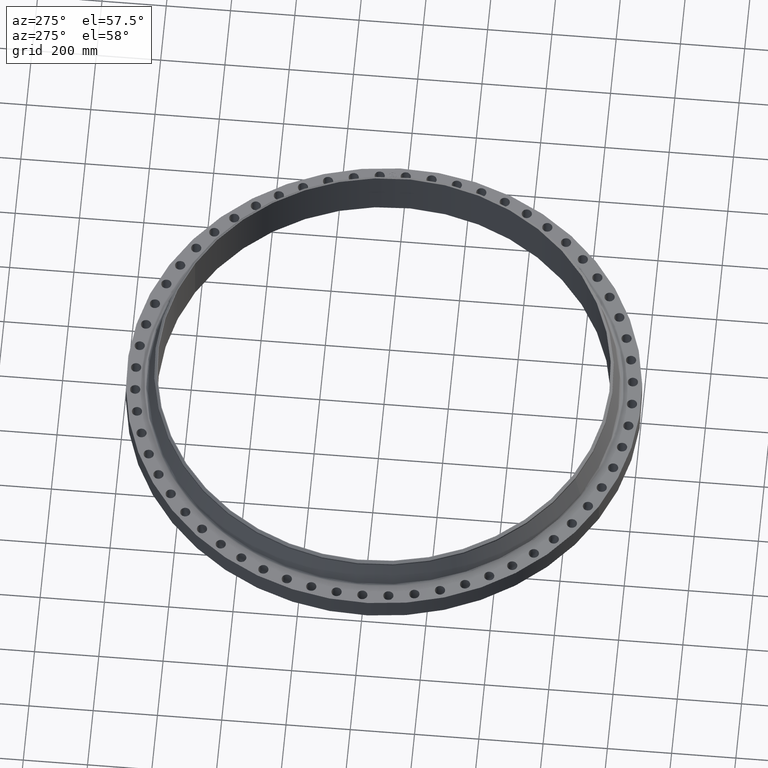
[diagram: clean part render]
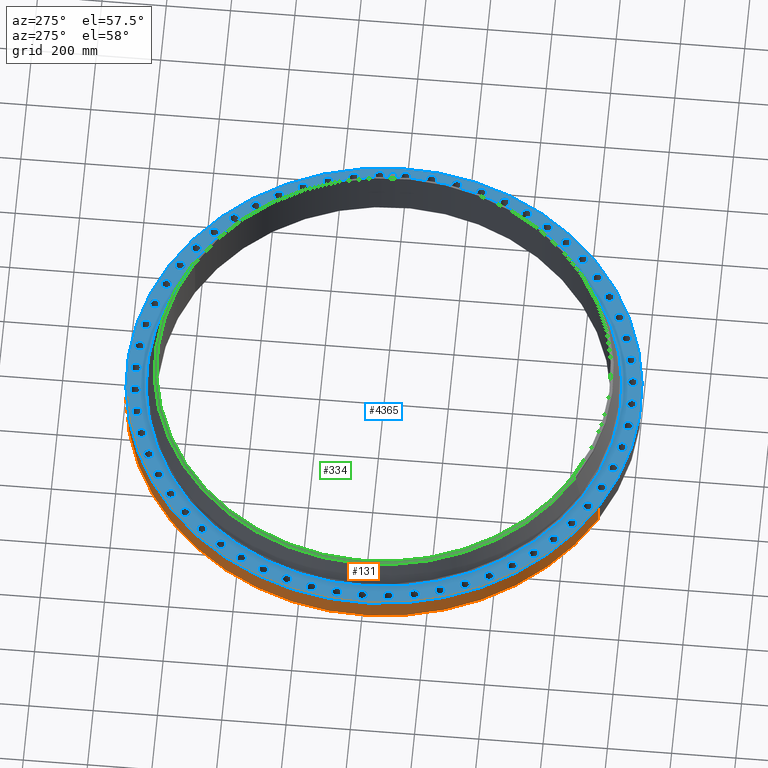
[diagram: same view with three faces highlighted in distinct colors, each labeled with its STEP entity id]
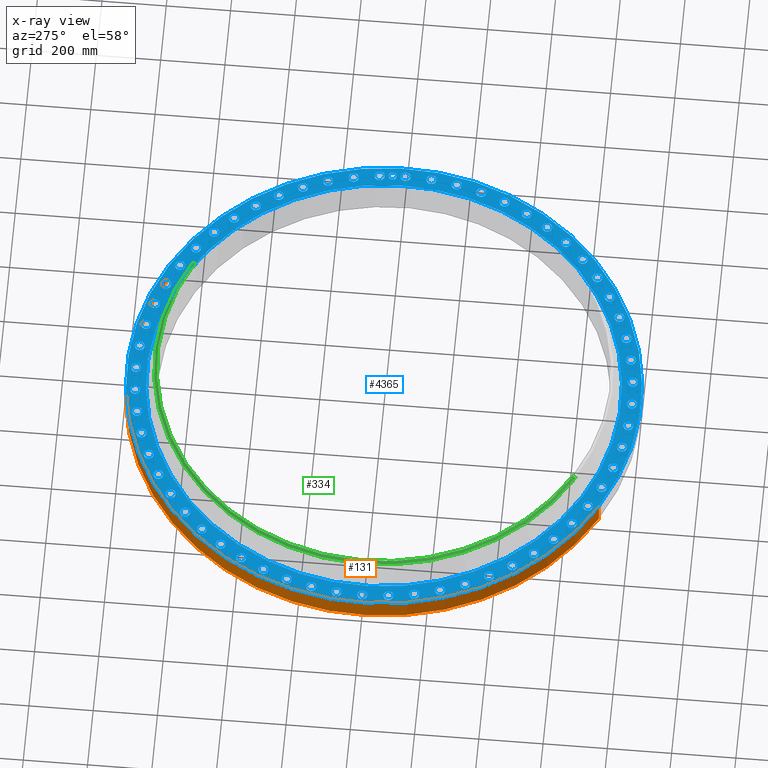
[diagram: x-ray of the same camera — body ghosted, the three highlighted faces saturated]
A machine part, auxiliary view with three faces highlighted in distinct colors.
The next image is the same camera in x-ray (body ghosted, the three faces saturated) — at least one of them is partly hidden behind the body in this view.
Their STEP definitions:

[orange] entity #131 — the highlighted cylindrical surface (partial cylindrical patch) has radius 800.1 mm, axis along (0, 0, -1).
#95=AXIS2_PLACEMENT_3D('Cylinder Axis2P3D',#92,#93,#94) ;
#99=AXIS2_PLACEMENT_3D('Circle Axis2P3D',#97,#98,$) ;
#115=AXIS2_PLACEMENT_3D('Circle Axis2P3D',#113,#114,$) ;
#92=CARTESIAN_POINT('Axis2P3D Location',(0.,0.,3.26850000001)) ;
#97=CARTESIAN_POINT('Axis2P3D Location',(0.,0.,3.91637728372E-015)) ;
#101=CARTESIAN_POINT('Vertex',(-15.1019044661,-27.6438506997,3.91637728372E-015)) ;
#103=CARTESIAN_POINT('Vertex',(15.1019044661,27.6438506997,3.91637728372E-015)) ;
#106=CARTESIAN_POINT('Line Origine',(-15.1019044661,-27.6438506997,1.41000000001)) ;
#110=CARTESIAN_POINT('Vertex',(-15.1019044661,-27.6438506997,2.82000000001)) ;
#113=CARTESIAN_POINT('Axis2P3D Location',(0.,0.,2.82000000001)) ;
#117=CARTESIAN_POINT('Vertex',(15.1019044661,27.6438506997,2.82000000001)) ;
#120=CARTESIAN_POINT('Line Origine',(15.1019044661,27.6438506997,1.41000000001)) ;
#93=DIRECTION('Axis2P3D Direction',(0.,0.,-0.0393700787402)) ;
#94=DIRECTION('Axis2P3D XDirection',(0.0188750212049,0.0345504945626,0.)) ;
#98=DIRECTION('Axis2P3D Direction',(0.,0.,-0.0393700787402)) ;
#107=DIRECTION('Vector Direction',(0.,0.,-0.0393700787402)) ;
#114=DIRECTION('Axis2P3D Direction',(0.,0.,-0.0393700787402)) ;
#121=DIRECTION('Vector Direction',(0.,0.,-0.0393700787402)) ;
#108=VECTOR('Line Direction',#107,0.0393700787402) ;
#122=VECTOR('Line Direction',#121,0.0393700787402) ;
#126=ORIENTED_EDGE('',*,*,#105,.F.) ;
#127=ORIENTED_EDGE('',*,*,#112,.T.) ;
#128=ORIENTED_EDGE('',*,*,#119,.T.) ;
#129=ORIENTED_EDGE('',*,*,#124,.F.) ;
#131=ADVANCED_FACE('PartBody',(#130),#96,.T.) ;
#100=CIRCLE('generated circle',#99,31.5000000001) ;
#116=CIRCLE('generated circle',#115,31.5000000001) ;
#96=CYLINDRICAL_SURFACE('generated cylinder',#95,31.5000000001) ;
#105=EDGE_CURVE('',#102,#104,#100,.T.) ;
#112=EDGE_CURVE('',#102,#111,#109,.F.) ;
#119=EDGE_CURVE('',#111,#118,#116,.T.) ;
#124=EDGE_CURVE('',#104,#118,#123,.F.) ;
#125=EDGE_LOOP('',(#126,#127,#128,#129)) ;
#130=FACE_OUTER_BOUND('',#125,.T.) ;
#109=LINE('Line',#106,#108) ;
#123=LINE('Line',#120,#122) ;
#102=VERTEX_POINT('',#101) ;
#104=VERTEX_POINT('',#103) ;
#111=VERTEX_POINT('',#110) ;
#118=VERTEX_POINT('',#117) ;

[blue] entity #4365 — the highlighted planar face has unit normal (0, 0, -1).
#65=AXIS2_PLACEMENT_3D('Circle Axis2P3D',#63,#64,$) ;
#82=AXIS2_PLACEMENT_3D('Circle Axis2P3D',#80,#81,$) ;
#115=AXIS2_PLACEMENT_3D('Circle Axis2P3D',#113,#114,$) ;
#139=AXIS2_PLACEMENT_3D('Circle Axis2P3D',#137,#138,$) ;
#156=AXIS2_PLACEMENT_3D('Circle Axis2P3D',#154,#155,$) ;
#191=AXIS2_PLACEMENT_3D('Circle Axis2P3D',#189,#190,$) ;
#1578=AXIS2_PLACEMENT_3D('Circle Axis2P3D',#1576,#1577,$) ;
#1590=AXIS2_PLACEMENT_3D('Circle Axis2P3D',#1588,#1589,$) ;
#1621=AXIS2_PLACEMENT_3D('Circle Axis2P3D',#1619,#1620,$) ;
#1633=AXIS2_PLACEMENT_3D('Circle Axis2P3D',#1631,#1632,$) ;
#1664=AXIS2_PLACEMENT_3D('Circle Axis2P3D',#1662,#1663,$) ;
#1676=AXIS2_PLACEMENT_3D('Circle Axis2P3D',#1674,#1675,$) ;
#1707=AXIS2_PLACEMENT_3D('Circle Axis2P3D',#1705,#1706,$) ;
#1719=AXIS2_PLACEMENT_3D('Circle Axis2P3D',#1717,#1718,$) ;
#1750=AXIS2_PLACEMENT_3D('Circle Axis2P3D',#1748,#1749,$) ;
#1762=AXIS2_PLACEMENT_3D('Circle Axis2P3D',#1760,#1761,$) ;
#1793=AXIS2_PLACEMENT_3D('Circle Axis2P3D',#1791,#1792,$) ;
#1805=AXIS2_PLACEMENT_3D('Circle Axis2P3D',#1803,#1804,$) ;
#1836=AXIS2_PLACEMENT_3D('Circle Axis2P3D',#1834,#1835,$) ;
#1848=AXIS2_PLACEMENT_3D('Circle Axis2P3D',#1846,#1847,$) ;
#1879=AXIS2_PLACEMENT_3D('Circle Axis2P3D',#1877,#1878,$) ;
#1891=AXIS2_PLACEMENT_3D('Circle Axis2P3D',#1889,#1890,$) ;
#1922=AXIS2_PLACEMENT_3D('Circle Axis2P3D',#1920,#1921,$) ;
#1934=AXIS2_PLACEMENT_3D('Circle Axis2P3D',#1932,#1933,$) ;
#1965=AXIS2_PLACEMENT_3D('Circle Axis2P3D',#1963,#1964,$) ;
#1977=AXIS2_PLACEMENT_3D('Circle Axis2P3D',#1975,#1976,$) ;
#2008=AXIS2_PLACEMENT_3D('Circle Axis2P3D',#2006,#2007,$) ;
#2020=AXIS2_PLACEMENT_3D('Circle Axis2P3D',#2018,#2019,$) ;
#2051=AXIS2_PLACEMENT_3D('Circle Axis2P3D',#2049,#2050,$) ;
#2063=AXIS2_PLACEMENT_3D('Circle Axis2P3D',#2061,#2062,$) ;
#2094=AXIS2_PLACEMENT_3D('Circle Axis2P3D',#2092,#2093,$) ;
#2106=AXIS2_PLACEMENT_3D('Circle Axis2P3D',#2104,#2105,$) ;
#2137=AXIS2_PLACEMENT_3D('Circle Axis2P3D',#2135,#2136,$) ;
#2149=AXIS2_PLACEMENT_3D('Circle Axis2P3D',#2147,#2148,$) ;
#2180=AXIS2_PLACEMENT_3D('Circle Axis2P3D',#2178,#2179,$) ;
#2192=AXIS2_PLACEMENT_3D('Circle Axis2P3D',#2190,#2191,$) ;
#2223=AXIS2_PLACEMENT_3D('Circle Axis2P3D',#2221,#2222,$) ;
#2235=AXIS2_PLACEMENT_3D('Circle Axis2P3D',#2233,#2234,$) ;
#2266=AXIS2_PLACEMENT_3D('Circle Axis2P3D',#2264,#2265,$) ;
#2278=AXIS2_PLACEMENT_3D('Circle Axis2P3D',#2276,#2277,$) ;
#2309=AXIS2_PLACEMENT_3D('Circle Axis2P3D',#2307,#2308,$) ;
#2321=AXIS2_PLACEMENT_3D('Circle Axis2P3D',#2319,#2320,$) ;
#2352=AXIS2_PLACEMENT_3D('Circle Axis2P3D',#2350,#2351,$) ;
#2364=AXIS2_PLACEMENT_3D('Circle Axis2P3D',#2362,#2363,$) ;
#2395=AXIS2_PLACEMENT_3D('Circle Axis2P3D',#2393,#2394,$) ;
#2407=AXIS2_PLACEMENT_3D('Circle Axis2P3D',#2405,#2406,$) ;
#2438=AXIS2_PLACEMENT_3D('Circle Axis2P3D',#2436,#2437,$) ;
#2450=AXIS2_PLACEMENT_3D('Circle Axis2P3D',#2448,#2449,$) ;
#2481=AXIS2_PLACEMENT_3D('Circle Axis2P3D',#2479,#2480,$) ;
#2493=AXIS2_PLACEMENT_3D('Circle Axis2P3D',#2491,#2492,$) ;
#2524=AXIS2_PLACEMENT_3D('Circle Axis2P3D',#2522,#2523,$) ;
#2536=AXIS2_PLACEMENT_3D('Circle Axis2P3D',#2534,#2535,$) ;
#2567=AXIS2_PLACEMENT_3D('Circle Axis2P3D',#2565,#2566,$) ;
#2579=AXIS2_PLACEMENT_3D('Circle Axis2P3D',#2577,#2578,$) ;
#2610=AXIS2_PLACEMENT_3D('Circle Axis2P3D',#2608,#2609,$) ;
#2622=AXIS2_PLACEMENT_3D('Circle Axis2P3D',#2620,#2621,$) ;
#2653=AXIS2_PLACEMENT_3D('Circle Axis2P3D',#2651,#2652,$) ;
#2665=AXIS2_PLACEMENT_3D('Circle Axis2P3D',#2663,#2664,$) ;
#2696=AXIS2_PLACEMENT_3D('Circle Axis2P3D',#2694,#2695,$) ;
#2708=AXIS2_PLACEMENT_3D('Circle Axis2P3D',#2706,#2707,$) ;
#2739=AXIS2_PLACEMENT_3D('Circle Axis2P3D',#2737,#2738,$) ;
#2751=AXIS2_PLACEMENT_3D('Circle Axis2P3D',#2749,#2750,$) ;
#2782=AXIS2_PLACEMENT_3D('Circle Axis2P3D',#2780,#2781,$) ;
#2794=AXIS2_PLACEMENT_3D('Circle Axis2P3D',#2792,#2793,$) ;
#2825=AXIS2_PLACEMENT_3D('Circle Axis2P3D',#2823,#2824,$) ;
#2837=AXIS2_PLACEMENT_3D('Circle Axis2P3D',#2835,#2836,$) ;
#2868=AXIS2_PLACEMENT_3D('Circle Axis2P3D',#2866,#2867,$) ;
#2880=AXIS2_PLACEMENT_3D('Circle Axis2P3D',#2878,#2879,$) ;
#2911=AXIS2_PLACEMENT_3D('Circle Axis2P3D',#2909,#2910,$) ;
#2923=AXIS2_PLACEMENT_3D('Circle Axis2P3D',#2921,#2922,$) ;
#2954=AXIS2_PLACEMENT_3D('Circle Axis2P3D',#2952,#2953,$) ;
#2966=AXIS2_PLACEMENT_3D('Circle Axis2P3D',#2964,#2965,$) ;
#2997=AXIS2_PLACEMENT_3D('Circle Axis2P3D',#2995,#2996,$) ;
#3009=AXIS2_PLACEMENT_3D('Circle Axis2P3D',#3007,#3008,$) ;
#3040=AXIS2_PLACEMENT_3D('Circle Axis2P3D',#3038,#3039,$) ;
#3052=AXIS2_PLACEMENT_3D('Circle Axis2P3D',#3050,#3051,$) ;
#3083=AXIS2_PLACEMENT_3D('Circle Axis2P3D',#3081,#3082,$) ;
#3095=AXIS2_PLACEMENT_3D('Circle Axis2P3D',#3093,#3094,$) ;
#3126=AXIS2_PLACEMENT_3D('Circle Axis2P3D',#3124,#3125,$) ;
#3138=AXIS2_PLACEMENT_3D('Circle Axis2P3D',#3136,#3137,$) ;
#3169=AXIS2_PLACEMENT_3D('Circle Axis2P3D',#3167,#3168,$) ;
#3181=AXIS2_PLACEMENT_3D('Circle Axis2P3D',#3179,#3180,$) ;
#3212=AXIS2_PLACEMENT_3D('Circle Axis2P3D',#3210,#3211,$) ;
#3224=AXIS2_PLACEMENT_3D('Circle Axis2P3D',#3222,#3223,$) ;
#3255=AXIS2_PLACEMENT_3D('Circle Axis2P3D',#3253,#3254,$) ;
#3267=AXIS2_PLACEMENT_3D('Circle Axis2P3D',#3265,#3266,$) ;
#3298=AXIS2_PLACEMENT_3D('Circle Axis2P3D',#3296,#3297,$) ;
#3310=AXIS2_PLACEMENT_3D('Circle Axis2P3D',#3308,#3309,$) ;
#3341=AXIS2_PLACEMENT_3D('Circle Axis2P3D',#3339,#3340,$) ;
#3353=AXIS2_PLACEMENT_3D('Circle Axis2P3D',#3351,#3352,$) ;
#3384=AXIS2_PLACEMENT_3D('Circle Axis2P3D',#3382,#3383,$) ;
#3396=AXIS2_PLACEMENT_3D('Circle Axis2P3D',#3394,#3395,$) ;
#3427=AXIS2_PLACEMENT_3D('Circle Axis2P3D',#3425,#3426,$) ;
#3439=AXIS2_PLACEMENT_3D('Circle Axis2P3D',#3437,#3438,$) ;
#3470=AXIS2_PLACEMENT_3D('Circle Axis2P3D',#3468,#3469,$) ;
#3482=AXIS2_PLACEMENT_3D('Circle Axis2P3D',#3480,#3481,$) ;
#3513=AXIS2_PLACEMENT_3D('Circle Axis2P3D',#3511,#3512,$) ;
#3525=AXIS2_PLACEMENT_3D('Circle Axis2P3D',#3523,#3524,$) ;
#3556=AXIS2_PLACEMENT_3D('Circle Axis2P3D',#3554,#3555,$) ;
#3568=AXIS2_PLACEMENT_3D('Circle Axis2P3D',#3566,#3567,$) ;
#3599=AXIS2_PLACEMENT_3D('Circle Axis2P3D',#3597,#3598,$) ;
#3611=AXIS2_PLACEMENT_3D('Circle Axis2P3D',#3609,#3610,$) ;
#3642=AXIS2_PLACEMENT_3D('Circle Axis2P3D',#3640,#3641,$) ;
#3654=AXIS2_PLACEMENT_3D('Circle Axis2P3D',#3652,#3653,$) ;
#3685=AXIS2_PLACEMENT_3D('Circle Axis2P3D',#3683,#3684,$) ;
#3697=AXIS2_PLACEMENT_3D('Circle Axis2P3D',#3695,#3696,$) ;
#3728=AXIS2_PLACEMENT_3D('Circle Axis2P3D',#3726,#3727,$) ;
#3740=AXIS2_PLACEMENT_3D('Circle Axis2P3D',#3738,#3739,$) ;
#3771=AXIS2_PLACEMENT_3D('Circle Axis2P3D',#3769,#3770,$) ;
#3783=AXIS2_PLACEMENT_3D('Circle Axis2P3D',#3781,#3782,$) ;
#3814=AXIS2_PLACEMENT_3D('Circle Axis2P3D',#3812,#3813,$) ;
#3826=AXIS2_PLACEMENT_3D('Circle Axis2P3D',#3824,#3825,$) ;
#3857=AXIS2_PLACEMENT_3D('Circle Axis2P3D',#3855,#3856,$) ;
#3869=AXIS2_PLACEMENT_3D('Circle Axis2P3D',#3867,#3868,$) ;
#3900=AXIS2_PLACEMENT_3D('Circle Axis2P3D',#3898,#3899,$) ;
#3912=AXIS2_PLACEMENT_3D('Circle Axis2P3D',#3910,#3911,$) ;
#3943=AXIS2_PLACEMENT_3D('Circle Axis2P3D',#3941,#3942,$) ;
#3955=AXIS2_PLACEMENT_3D('Circle Axis2P3D',#3953,#3954,$) ;
#3986=AXIS2_PLACEMENT_3D('Circle Axis2P3D',#3984,#3985,$) ;
#3998=AXIS2_PLACEMENT_3D('Circle Axis2P3D',#3996,#3997,$) ;
#4029=AXIS2_PLACEMENT_3D('Circle Axis2P3D',#4027,#4028,$) ;
#4041=AXIS2_PLACEMENT_3D('Circle Axis2P3D',#4039,#4040,$) ;
#4072=AXIS2_PLACEMENT_3D('Circle Axis2P3D',#4070,#4071,$) ;
#4084=AXIS2_PLACEMENT_3D('Circle Axis2P3D',#4082,#4083,$) ;
#4097=AXIS2_PLACEMENT_3D('Plane Axis2P3D',#4094,#4095,#4096) ;
#4349=AXIS2_PLACEMENT_3D('Circle Axis2P3D',#4347,#4348,$) ;
#4358=AXIS2_PLACEMENT_3D('Circle Axis2P3D',#4356,#4357,$) ;
#46=CARTESIAN_POINT('Vertex',(29.8265108989,0.299640961629,2.82000000001)) ;
#60=CARTESIAN_POINT('Vertex',(30.9234891013,-0.299640961629,2.82000000001)) ;
#63=CARTESIAN_POINT('Axis2P3D Location',(30.3750000001,0.,2.82000000001)) ;
#80=CARTESIAN_POINT('Axis2P3D Location',(30.3750000001,0.,2.82000000001)) ;
#110=CARTESIAN_POINT('Vertex',(-15.1019044661,-27.6438506997,2.82000000001)) ;
#113=CARTESIAN_POINT('Axis2P3D Location',(0.,0.,2.82000000001)) ;
#117=CARTESIAN_POINT('Vertex',(15.1019044661,27.6438506997,2.82000000001)) ;
#137=CARTESIAN_POINT('Axis2P3D Location',(0.,0.,2.82000000001)) ;
#154=CARTESIAN_POINT('Axis2P3D Location',(0.,0.,2.82000000001)) ;
#158=CARTESIAN_POINT('Vertex',(13.9230653616,25.486000193,2.82000000001)) ;
#160=CARTESIAN_POINT('Vertex',(-13.9230653616,-25.486000193,2.82000000001)) ;
#189=CARTESIAN_POINT('Axis2P3D Location',(0.,0.,2.82000000001)) ;
#1566=CARTESIAN_POINT('Vertex',(-29.6944391607,2.81971985181,2.82000000001)) ;
#1573=CARTESIAN_POINT('Vertex',(-30.7227659832,3.53038429172,2.82000000001)) ;
#1576=CARTESIAN_POINT('Axis2P3D Location',(-30.2086025719,3.17505207177,2.82000000001)) ;
#1588=CARTESIAN_POINT('Axis2P3D Location',(-30.2086025719,3.17505207177,2.82000000001)) ;
#1609=CARTESIAN_POINT('Vertex',(29.237028933,-5.90818722449,2.82000000001)) ;
#1616=CARTESIAN_POINT('Vertex',(30.1854378118,-6.72244799274,2.82000000001)) ;
#1619=CARTESIAN_POINT('Axis2P3D Location',(29.7112333724,-6.31531760861,2.82000000001)) ;
#1631=CARTESIAN_POINT('Axis2P3D Location',(29.7112333724,-6.31531760861,2.82000000001)) ;
#1652=CARTESIAN_POINT('Vertex',(-29.237028933,5.90818722449,2.82000000001)) ;
#1659=CARTESIAN_POINT('Vertex',(-30.1854378118,6.72244799274,2.82000000001)) ;
#1662=CARTESIAN_POINT('Axis2P3D Location',(-29.7112333724,6.31531760861,2.82000000001)) ;
#1674=CARTESIAN_POINT('Axis2P3D Location',(-29.7112333724,6.31531760861,2.82000000001)) ;
#1695=CARTESIAN_POINT('Vertex',(28.4592916981,-8.93192326158,2.82000000001)) ;
#1702=CARTESIAN_POINT('Vertex',(29.317391667,-9.84085914678,2.82000000001)) ;
#1705=CARTESIAN_POINT('Axis2P3D Location',(28.8883416826,-9.38639120418,2.82000000001)) ;
#1717=CARTESIAN_POINT('Axis2P3D Location',(28.8883416826,-9.38639120418,2.82000000001)) ;
#1738=CARTESIAN_POINT('Vertex',(-28.4592916981,8.93192326158,2.82000000001)) ;
#1745=CARTESIAN_POINT('Vertex',(-29.317391667,9.84085914678,2.82000000001)) ;
#1748=CARTESIAN_POINT('Axis2P3D Location',(-28.8883416826,9.38639120418,2.82000000001)) ;
#1760=CARTESIAN_POINT('Axis2P3D Location',(-28.8883416826,9.38639120418,2.82000000001)) ;
#1781=CARTESIAN_POINT('Vertex',(27.3697485079,-11.8577992783,2.82000000001)) ;
#1788=CARTESIAN_POINT('Vertex',(28.1281380441,-12.8514517887,2.82000000001)) ;
#1791=CARTESIAN_POINT('Axis2P3D Location',(27.748943276,-12.3546255335,2.82000000001)) ;
#1803=CARTESIAN_POINT('Axis2P3D Location',(27.748943276,-12.3546255335,2.82000000001)) ;
#1824=CARTESIAN_POINT('Vertex',(-27.3697485079,11.8577992783,2.82000000001)) ;
#1831=CARTESIAN_POINT('Vertex',(-28.1281380441,12.8514517887,2.82000000001)) ;
#1834=CARTESIAN_POINT('Axis2P3D Location',(-27.748943276,12.3546255335,2.82000000001)) ;
#1846=CARTESIAN_POINT('Axis2P3D Location',(-27.748943276,12.3546255335,2.82000000001)) ;
#1867=CARTESIAN_POINT('Vertex',(25.9803366255,-14.6537587647,2.82000000001)) ;
#1874=CARTESIAN_POINT('Vertex',(26.6307066546,-15.7212412354,2.82000000001)) ;
#1877=CARTESIAN_POINT('Axis2P3D Location',(26.3055216401,-15.1875000001,2.82000000001)) ;
#1889=CARTESIAN_POINT('Axis2P3D Location',(26.3055216401,-15.1875000001,2.82000000001)) ;
#1910=CARTESIAN_POINT('Vertex',(-25.9803366255,14.6537587647,2.82000000001)) ;
#1917=CARTESIAN_POINT('Vertex',(-26.6307066546,15.7212412354,2.82000000001)) ;
#1920=CARTESIAN_POINT('Axis2P3D Location',(-26.3055216401,15.1875000001,2.82000000001)) ;
#1932=CARTESIAN_POINT('Axis2P3D Location',(-26.3055216401,15.1875000001,2.82000000001)) ;
#1953=CARTESIAN_POINT('Vertex',(24.3062787384,-17.2891686036,2.82000000001)) ;
#1960=CARTESIAN_POINT('Vertex',(24.8415036701,-18.4187854733,2.82000000001)) ;
#1963=CARTESIAN_POINT('Axis2P3D Location',(24.5738912042,-17.8539770385,2.82000000001)) ;
#1975=CARTESIAN_POINT('Axis2P3D Location',(24.5738912042,-17.8539770385,2.82000000001)) ;
#1996=CARTESIAN_POINT('Vertex',(-24.3062787384,17.2891686036,2.82000000001)) ;
#2003=CARTESIAN_POINT('Vertex',(-24.8415036701,18.4187854733,2.82000000001)) ;
#2006=CARTESIAN_POINT('Axis2P3D Location',(-24.5738912042,17.8539770385,2.82000000001)) ;
#2018=CARTESIAN_POINT('Axis2P3D Location',(-24.5738912042,17.8539770385,2.82000000001)) ;
#2039=CARTESIAN_POINT('Vertex',(22.3659161749,-19.7351546932,2.82000000001)) ;
#2046=CARTESIAN_POINT('Vertex',(22.780131973,-20.9145296432,2.82000000001)) ;
#2049=CARTESIAN_POINT('Axis2P3D Location',(22.573024074,-20.3248421682,2.82000000001)) ;
#2061=CARTESIAN_POINT('Axis2P3D Location',(22.573024074,-20.3248421682,2.82000000001)) ;
#2082=CARTESIAN_POINT('Vertex',(-22.3659161749,19.7351546932,2.82000000001)) ;
#2089=CARTESIAN_POINT('Vertex',(-22.780131973,20.9145296432,2.82000000001)) ;
#2092=CARTESIAN_POINT('Axis2P3D Location',(-22.573024074,20.3248421682,2.82000000001)) ;
#2104=CARTESIAN_POINT('Axis2P3D Location',(-22.573024074,20.3248421682,2.82000000001)) ;
#2125=CARTESIAN_POINT('Vertex',(20.1805079535,-21.9649182982,2.82000000001)) ;
#2132=CARTESIAN_POINT('Vertex',(20.469176383,-23.1811298497,2.82000000001)) ;
#2135=CARTESIAN_POINT('Axis2P3D Location',(20.3248421682,-22.573024074,2.82000000001)) ;
#2147=CARTESIAN_POINT('Axis2P3D Location',(20.3248421682,-22.573024074,2.82000000001)) ;
#2168=CARTESIAN_POINT('Vertex',(-20.1805079535,21.9649182982,2.82000000001)) ;
#2175=CARTESIAN_POINT('Vertex',(-20.469176383,23.1811298497,2.82000000001)) ;
#2178=CARTESIAN_POINT('Axis2P3D Location',(-20.3248421682,22.573024074,2.82000000001)) ;
#2190=CARTESIAN_POINT('Axis2P3D Location',(-20.3248421682,22.573024074,2.82000000001)) ;
#2211=CARTESIAN_POINT('Vertex',(17.7739978639,-23.9540296619,2.82000000001)) ;
#2218=CARTESIAN_POINT('Vertex',(17.933956213,-25.1937527466,2.82000000001)) ;
#2221=CARTESIAN_POINT('Axis2P3D Location',(17.8539770385,-24.5738912042,2.82000000001)) ;
#2233=CARTESIAN_POINT('Axis2P3D Location',(17.8539770385,-24.5738912042,2.82000000001)) ;
#2254=CARTESIAN_POINT('Vertex',(-17.7739978639,23.9540296619,2.82000000001)) ;
#2261=CARTESIAN_POINT('Vertex',(-17.933956213,25.1937527466,2.82000000001)) ;
#2264=CARTESIAN_POINT('Axis2P3D Location',(-17.8539770385,24.5738912042,2.82000000001)) ;
#2276=CARTESIAN_POINT('Axis2P3D Location',(-17.8539770385,24.5738912042,2.82000000001)) ;
#2297=CARTESIAN_POINT('Vertex',(15.1727521343,-25.6806956639,2.82000000001)) ;
#2304=CARTESIAN_POINT('Vertex',(15.2022478659,-26.9303476162,2.82000000001)) ;
#2307=CARTESIAN_POINT('Axis2P3D Location',(15.1875000001,-26.3055216401,2.82000000001)) ;
#2319=CARTESIAN_POINT('Axis2P3D Location',(15.1875000001,-26.3055216401,2.82000000001)) ;
#2340=CARTESIAN_POINT('Vertex',(-15.1727521343,25.6806956639,2.82000000001)) ;
#2347=CARTESIAN_POINT('Vertex',(-15.2022478659,26.9303476162,2.82000000001)) ;
#2350=CARTESIAN_POINT('Axis2P3D Location',(-15.1875000001,26.3055216401,2.82000000001)) ;
#2362=CARTESIAN_POINT('Axis2P3D Location',(-15.1875000001,26.3055216401,2.82000000001)) ;
#2383=CARTESIAN_POINT('Vertex',(12.4052705571,-27.1259985902,2.82000000001)) ;
#2390=CARTESIAN_POINT('Vertex',(12.3039805098,-28.3718879618,2.82000000001)) ;
#2393=CARTESIAN_POINT('Axis2P3D Location',(12.3546255335,-27.748943276,2.82000000001)) ;
#2405=CARTESIAN_POINT('Axis2P3D Location',(12.3546255335,-27.748943276,2.82000000001)) ;
#2426=CARTESIAN_POINT('Vertex',(-12.4052705571,27.1259985902,2.82000000001)) ;
#2433=CARTESIAN_POINT('Vertex',(-12.3039805098,28.3718879618,2.82000000001)) ;
#2436=CARTESIAN_POINT('Axis2P3D Location',(-12.3546255335,27.748943276,2.82000000001)) ;
#2448=CARTESIAN_POINT('Axis2P3D Location',(-12.3546255335,27.748943276,2.82000000001)) ;
#2469=CARTESIAN_POINT('Vertex',(9.50187423979,-28.2741033994,2.82000000001)) ;
#2476=CARTESIAN_POINT('Vertex',(9.27090816857,-29.5025799657,2.82000000001)) ;
#2479=CARTESIAN_POINT('Axis2P3D Location',(9.38639120418,-28.8883416826,2.82000000001)) ;
#2491=CARTESIAN_POINT('Axis2P3D Location',(9.38639120418,-28.8883416826,2.82000000001)) ;
#2512=CARTESIAN_POINT('Vertex',(-9.50187423979,28.2741033994,2.82000000001)) ;
#2519=CARTESIAN_POINT('Vertex',(-9.27090816857,29.5025799657,2.82000000001)) ;
#2522=CARTESIAN_POINT('Axis2P3D Location',(-9.38639120418,28.8883416826,2.82000000001)) ;
#2534=CARTESIAN_POINT('Axis2P3D Location',(-9.38639120418,28.8883416826,2.82000000001)) ;
#2555=CARTESIAN_POINT('Vertex',(6.49437339989,-29.1124312151,2.82000000001)) ;
#2562=CARTESIAN_POINT('Vertex',(6.13626181734,-30.3100355297,2.82000000001)) ;
#2565=CARTESIAN_POINT('Axis2P3D Location',(6.31531760861,-29.7112333724,2.82000000001)) ;
#2577=CARTESIAN_POINT('Axis2P3D Location',(6.31531760861,-29.7112333724,2.82000000001)) ;
#2598=CARTESIAN_POINT('Vertex',(-6.49437339989,29.1124312151,2.82000000001)) ;
#2605=CARTESIAN_POINT('Vertex',(-6.13626181734,30.3100355297,2.82000000001)) ;
#2608=CARTESIAN_POINT('Axis2P3D Location',(-6.31531760861,29.7112333724,2.82000000001)) ;
#2620=CARTESIAN_POINT('Axis2P3D Location',(-6.31531760861,29.7112333724,2.82000000001)) ;
#2641=CARTESIAN_POINT('Vertex',(3.41571884599,-29.6317971422,2.82000000001)) ;
#2648=CARTESIAN_POINT('Vertex',(2.93438529754,-30.7854080017,2.82000000001)) ;
#2651=CARTESIAN_POINT('Axis2P3D Location',(3.17505207177,-30.2086025719,2.82000000001)) ;
#2663=CARTESIAN_POINT('Axis2P3D Location',(3.17505207177,-30.2086025719,2.82000000001)) ;
#2684=CARTESIAN_POINT('Vertex',(-3.41571884599,29.6317971422,2.82000000001)) ;
#2691=CARTESIAN_POINT('Vertex',(-2.93438529754,30.7854080017,2.82000000001)) ;
#2694=CARTESIAN_POINT('Axis2P3D Location',(-3.17505207177,30.2086025719,2.82000000001)) ;
#2706=CARTESIAN_POINT('Axis2P3D Location',(-3.17505207177,30.2086025719,2.82000000001)) ;
#2727=CARTESIAN_POINT('Vertex',(0.299640961629,-29.8265108989,2.82000000001)) ;
#2734=CARTESIAN_POINT('Vertex',(-0.299640961629,-30.9234891013,2.82000000001)) ;
#2737=CARTESIAN_POINT('Axis2P3D Location',(-2.61592742661E-015,-30.3750000001,2.82000000001)) ;
#2749=CARTESIAN_POINT('Axis2P3D Location',(-2.61592742661E-015,-30.3750000001,2.82000000001)) ;
#2770=CARTESIAN_POINT('Vertex',(-0.299640961629,29.8265108989,2.82000000001)) ;
#2777=CARTESIAN_POINT('Vertex',(0.299640961629,30.9234891013,2.82000000001)) ;
#2780=CARTESIAN_POINT('Axis2P3D Location',(-1.10393722582E-015,30.3750000001,2.82000000001)) ;
#2792=CARTESIAN_POINT('Axis2P3D Location',(-1.10393722582E-015,30.3750000001,2.82000000001)) ;
#2813=CARTESIAN_POINT('Vertex',(-2.81971985181,-29.6944391607,2.82000000001)) ;
#2820=CARTESIAN_POINT('Vertex',(-3.53038429172,-30.7227659832,2.82000000001)) ;
#2823=CARTESIAN_POINT('Axis2P3D Location',(-3.17505207177,-30.2086025719,2.82000000001)) ;
#2835=CARTESIAN_POINT('Axis2P3D Location',(-3.17505207177,-30.2086025719,2.82000000001)) ;
#2856=CARTESIAN_POINT('Vertex',(2.81971985181,29.6944391607,2.82000000001)) ;
#2863=CARTESIAN_POINT('Vertex',(3.53038429172,30.7227659832,2.82000000001)) ;
#2866=CARTESIAN_POINT('Axis2P3D Location',(3.17505207177,30.2086025719,2.82000000001)) ;
#2878=CARTESIAN_POINT('Axis2P3D Location',(3.17505207177,30.2086025719,2.82000000001)) ;
#2899=CARTESIAN_POINT('Vertex',(-5.90818722449,-29.237028933,2.82000000001)) ;
#2906=CARTESIAN_POINT('Vertex',(-6.72244799274,-30.1854378118,2.82000000001)) ;
#2909=CARTESIAN_POINT('Axis2P3D Location',(-6.31531760861,-29.7112333724,2.82000000001)) ;
#2921=CARTESIAN_POINT('Axis2P3D Location',(-6.31531760861,-29.7112333724,2.82000000001)) ;
#2942=CARTESIAN_POINT('Vertex',(5.90818722449,29.237028933,2.82000000001)) ;
#2949=CARTESIAN_POINT('Vertex',(6.72244799274,30.1854378118,2.82000000001)) ;
#2952=CARTESIAN_POINT('Axis2P3D Location',(6.31531760861,29.7112333724,2.82000000001)) ;
#2964=CARTESIAN_POINT('Axis2P3D Location',(6.31531760861,29.7112333724,2.82000000001)) ;
#2985=CARTESIAN_POINT('Vertex',(-8.93192326158,-28.4592916981,2.82000000001)) ;
#2992=CARTESIAN_POINT('Vertex',(-9.84085914678,-29.317391667,2.82000000001)) ;
#2995=CARTESIAN_POINT('Axis2P3D Location',(-9.38639120418,-28.8883416826,2.82000000001)) ;
#3007=CARTESIAN_POINT('Axis2P3D Location',(-9.38639120418,-28.8883416826,2.82000000001)) ;
#3028=CARTESIAN_POINT('Vertex',(8.93192326158,28.4592916981,2.82000000001)) ;
#3035=CARTESIAN_POINT('Vertex',(9.84085914678,29.317391667,2.82000000001)) ;
#3038=CARTESIAN_POINT('Axis2P3D Location',(9.38639120418,28.8883416826,2.82000000001)) ;
#3050=CARTESIAN_POINT('Axis2P3D Location',(9.38639120418,28.8883416826,2.82000000001)) ;
#3071=CARTESIAN_POINT('Vertex',(-11.8577992783,-27.3697485079,2.82000000001)) ;
#3078=CARTESIAN_POINT('Vertex',(-12.8514517887,-28.1281380441,2.82000000001)) ;
#3081=CARTESIAN_POINT('Axis2P3D Location',(-12.3546255335,-27.748943276,2.82000000001)) ;
#3093=CARTESIAN_POINT('Axis2P3D Location',(-12.3546255335,-27.748943276,2.82000000001)) ;
#3114=CARTESIAN_POINT('Vertex',(11.8577992783,27.3697485079,2.82000000001)) ;
#3121=CARTESIAN_POINT('Vertex',(12.8514517887,28.1281380441,2.82000000001)) ;
#3124=CARTESIAN_POINT('Axis2P3D Location',(12.3546255335,27.748943276,2.82000000001)) ;
#3136=CARTESIAN_POINT('Axis2P3D Location',(12.3546255335,27.748943276,2.82000000001)) ;
#3157=CARTESIAN_POINT('Vertex',(-14.6537587647,-25.9803366255,2.82000000001)) ;
#3164=CARTESIAN_POINT('Vertex',(-15.7212412354,-26.6307066546,2.82000000001)) ;
#3167=CARTESIAN_POINT('Axis2P3D Location',(-15.1875000001,-26.3055216401,2.82000000001)) ;
#3179=CARTESIAN_POINT('Axis2P3D Location',(-15.1875000001,-26.3055216401,2.82000000001)) ;
#3200=CARTESIAN_POINT('Vertex',(14.6537587647,25.9803366255,2.82000000001)) ;
#3207=CARTESIAN_POINT('Vertex',(15.7212412354,26.6307066546,2.82000000001)) ;
#3210=CARTESIAN_POINT('Axis2P3D Location',(15.1875000001,26.3055216401,2.82000000001)) ;
#3222=CARTESIAN_POINT('Axis2P3D Location',(15.1875000001,26.3055216401,2.82000000001)) ;
#3243=CARTESIAN_POINT('Vertex',(-17.2891686036,-24.3062787384,2.82000000001)) ;
#3250=CARTESIAN_POINT('Vertex',(-18.4187854733,-24.8415036701,2.82000000001)) ;
#3253=CARTESIAN_POINT('Axis2P3D Location',(-17.8539770385,-24.5738912042,2.82000000001)) ;
#3265=CARTESIAN_POINT('Axis2P3D Location',(-17.8539770385,-24.5738912042,2.82000000001)) ;
#3286=CARTESIAN_POINT('Vertex',(17.2891686036,24.3062787384,2.82000000001)) ;
#3293=CARTESIAN_POINT('Vertex',(18.4187854733,24.8415036701,2.82000000001)) ;
#3296=CARTESIAN_POINT('Axis2P3D Location',(17.8539770385,24.5738912042,2.82000000001)) ;
#3308=CARTESIAN_POINT('Axis2P3D Location',(17.8539770385,24.5738912042,2.82000000001)) ;
#3329=CARTESIAN_POINT('Vertex',(-19.7351546932,-22.3659161749,2.82000000001)) ;
#3336=CARTESIAN_POINT('Vertex',(-20.9145296432,-22.780131973,2.82000000001)) ;
#3339=CARTESIAN_POINT('Axis2P3D Location',(-20.3248421682,-22.573024074,2.82000000001)) ;
#3351=CARTESIAN_POINT('Axis2P3D Location',(-20.3248421682,-22.573024074,2.82000000001)) ;
#3372=CARTESIAN_POINT('Vertex',(19.7351546932,22.3659161749,2.82000000001)) ;
#3379=CARTESIAN_POINT('Vertex',(20.9145296432,22.780131973,2.82000000001)) ;
#3382=CARTESIAN_POINT('Axis2P3D Location',(20.3248421682,22.573024074,2.82000000001)) ;
#3394=CARTESIAN_POINT('Axis2P3D Location',(20.3248421682,22.573024074,2.82000000001)) ;
#3415=CARTESIAN_POINT('Vertex',(-21.9649182982,-20.1805079535,2.82000000001)) ;
#3422=CARTESIAN_POINT('Vertex',(-23.1811298497,-20.469176383,2.82000000001)) ;
#3425=CARTESIAN_POINT('Axis2P3D Location',(-22.573024074,-20.3248421682,2.82000000001)) ;
#3437=CARTESIAN_POINT('Axis2P3D Location',(-22.573024074,-20.3248421682,2.82000000001)) ;
#3458=CARTESIAN_POINT('Vertex',(21.9649182982,20.1805079535,2.82000000001)) ;
#3465=CARTESIAN_POINT('Vertex',(23.1811298497,20.469176383,2.82000000001)) ;
#3468=CARTESIAN_POINT('Axis2P3D Location',(22.573024074,20.3248421682,2.82000000001)) ;
#3480=CARTESIAN_POINT('Axis2P3D Location',(22.573024074,20.3248421682,2.82000000001)) ;
#3501=CARTESIAN_POINT('Vertex',(-23.9540296619,-17.7739978639,2.82000000001)) ;
#3508=CARTESIAN_POINT('Vertex',(-25.1937527466,-17.933956213,2.82000000001)) ;
#3511=CARTESIAN_POINT('Axis2P3D Location',(-24.5738912042,-17.8539770385,2.82000000001)) ;
#3523=CARTESIAN_POINT('Axis2P3D Location',(-24.5738912042,-17.8539770385,2.82000000001)) ;
#3544=CARTESIAN_POINT('Vertex',(23.9540296619,17.7739978639,2.82000000001)) ;
#3551=CARTESIAN_POINT('Vertex',(25.1937527466,17.933956213,2.82000000001)) ;
#3554=CARTESIAN_POINT('Axis2P3D Location',(24.5738912042,17.8539770385,2.82000000001)) ;
#3566=CARTESIAN_POINT('Axis2P3D Location',(24.5738912042,17.8539770385,2.82000000001)) ;
#3587=CARTESIAN_POINT('Vertex',(-25.6806956639,-15.1727521343,2.82000000001)) ;
#3594=CARTESIAN_POINT('Vertex',(-26.9303476162,-15.2022478659,2.82000000001)) ;
#3597=CARTESIAN_POINT('Axis2P3D Location',(-26.3055216401,-15.1875000001,2.82000000001)) ;
#3609=CARTESIAN_POINT('Axis2P3D Location',(-26.3055216401,-15.1875000001,2.82000000001)) ;
#3630=CARTESIAN_POINT('Vertex',(25.6806956639,15.1727521343,2.82000000001)) ;
#3637=CARTESIAN_POINT('Vertex',(26.9303476162,15.2022478659,2.82000000001)) ;
#3640=CARTESIAN_POINT('Axis2P3D Location',(26.3055216401,15.1875000001,2.82000000001)) ;
#3652=CARTESIAN_POINT('Axis2P3D Location',(26.3055216401,15.1875000001,2.82000000001)) ;
#3673=CARTESIAN_POINT('Vertex',(-27.1259985902,-12.4052705571,2.82000000001)) ;
#3680=CARTESIAN_POINT('Vertex',(-28.3718879618,-12.3039805098,2.82000000001)) ;
#3683=CARTESIAN_POINT('Axis2P3D Location',(-27.748943276,-12.3546255335,2.82000000001)) ;
#3695=CARTESIAN_POINT('Axis2P3D Location',(-27.748943276,-12.3546255335,2.82000000001)) ;
#3716=CARTESIAN_POINT('Vertex',(27.1259985902,12.4052705571,2.82000000001)) ;
#3723=CARTESIAN_POINT('Vertex',(28.3718879618,12.3039805098,2.82000000001)) ;
#3726=CARTESIAN_POINT('Axis2P3D Location',(27.748943276,12.3546255335,2.82000000001)) ;
#3738=CARTESIAN_POINT('Axis2P3D Location',(27.748943276,12.3546255335,2.82000000001)) ;
#3759=CARTESIAN_POINT('Vertex',(-28.2741033994,-9.50187423979,2.82000000001)) ;
#3766=CARTESIAN_POINT('Vertex',(-29.5025799657,-9.27090816857,2.82000000001)) ;
#3769=CARTESIAN_POINT('Axis2P3D Location',(-28.8883416826,-9.38639120418,2.82000000001)) ;
#3781=CARTESIAN_POINT('Axis2P3D Location',(-28.8883416826,-9.38639120418,2.82000000001)) ;
#3802=CARTESIAN_POINT('Vertex',(28.2741033994,9.50187423979,2.82000000001)) ;
#3809=CARTESIAN_POINT('Vertex',(29.5025799657,9.27090816857,2.82000000001)) ;
#3812=CARTESIAN_POINT('Axis2P3D Location',(28.8883416826,9.38639120418,2.82000000001)) ;
#3824=CARTESIAN_POINT('Axis2P3D Location',(28.8883416826,9.38639120418,2.82000000001)) ;
#3845=CARTESIAN_POINT('Vertex',(-29.1124312151,-6.49437339989,2.82000000001)) ;
#3852=CARTESIAN_POINT('Vertex',(-30.3100355297,-6.13626181734,2.82000000001)) ;
#3855=CARTESIAN_POINT('Axis2P3D Location',(-29.7112333724,-6.31531760861,2.82000000001)) ;
#3867=CARTESIAN_POINT('Axis2P3D Location',(-29.7112333724,-6.31531760861,2.82000000001)) ;
#3888=CARTESIAN_POINT('Vertex',(29.1124312151,6.49437339989,2.82000000001)) ;
#3895=CARTESIAN_POINT('Vertex',(30.3100355297,6.13626181734,2.82000000001)) ;
#3898=CARTESIAN_POINT('Axis2P3D Location',(29.7112333724,6.31531760861,2.82000000001)) ;
#3910=CARTESIAN_POINT('Axis2P3D Location',(29.7112333724,6.31531760861,2.82000000001)) ;
#3931=CARTESIAN_POINT('Vertex',(-29.6317971422,-3.41571884599,2.82000000001)) ;
#3938=CARTESIAN_POINT('Vertex',(-30.7854080017,-2.93438529754,2.82000000001)) ;
#3941=CARTESIAN_POINT('Axis2P3D Location',(-30.2086025719,-3.17505207177,2.82000000001)) ;
#3953=CARTESIAN_POINT('Axis2P3D Location',(-30.2086025719,-3.17505207177,2.82000000001)) ;
#3974=CARTESIAN_POINT('Vertex',(29.6317971422,3.41571884599,2.82000000001)) ;
#3981=CARTESIAN_POINT('Vertex',(30.7854080017,2.93438529754,2.82000000001)) ;
#3984=CARTESIAN_POINT('Axis2P3D Location',(30.2086025719,3.17505207177,2.82000000001)) ;
#3996=CARTESIAN_POINT('Axis2P3D Location',(30.2086025719,3.17505207177,2.82000000001)) ;
#4017=CARTESIAN_POINT('Vertex',(-29.8265108989,-0.299640961629,2.82000000001)) ;
#4024=CARTESIAN_POINT('Vertex',(-30.9234891013,0.299640961629,2.82000000001)) ;
#4027=CARTESIAN_POINT('Axis2P3D Location',(-30.3750000001,-3.71986465242E-015,2.82000000001)) ;
#4039=CARTESIAN_POINT('Axis2P3D Location',(-30.3750000001,-3.71986465242E-015,2.82000000001)) ;
#4060=CARTESIAN_POINT('Vertex',(29.6944391607,-2.81971985181,2.82000000001)) ;
#4067=CARTESIAN_POINT('Vertex',(30.7227659832,-3.53038429172,2.82000000001)) ;
#4070=CARTESIAN_POINT('Axis2P3D Location',(30.2086025719,-3.17505207177,2.82000000001)) ;
#4082=CARTESIAN_POINT('Axis2P3D Location',(30.2086025719,-3.17505207177,2.82000000001)) ;
#4094=CARTESIAN_POINT('Axis2P3D Location',(0.,31.5000000001,2.82000000001)) ;
#4347=CARTESIAN_POINT('Axis2P3D Location',(30.3333721183,1.58970467089,2.82000000001)) ;
#4351=CARTESIAN_POINT('Vertex',(30.3072042001,2.08901829383,2.82000000001)) ;
#4353=CARTESIAN_POINT('Vertex',(30.3595400364,1.09039104794,2.82000000001)) ;
#4356=CARTESIAN_POINT('Axis2P3D Location',(30.3333721183,1.58970467089,2.82000000001)) ;
#64=DIRECTION('Axis2P3D Direction',(0.,-0.,-0.0393700787402)) ;
#81=DIRECTION('Axis2P3D Direction',(0.,-0.,-0.0393700787402)) ;
#114=DIRECTION('Axis2P3D Direction',(0.,0.,-0.0393700787402)) ;
#138=DIRECTION('Axis2P3D Direction',(0.,0.,-0.0393700787402)) ;
#155=DIRECTION('Axis2P3D Direction',(0.,0.,-0.0393700787402)) ;
#190=DIRECTION('Axis2P3D Direction',(0.,0.,-0.0393700787402)) ;
#1577=DIRECTION('Axis2P3D Direction',(0.,0.,-0.0393700787402)) ;
#1589=DIRECTION('Axis2P3D Direction',(0.,0.,-0.0393700787402)) ;
#1620=DIRECTION('Axis2P3D Direction',(0.,-0.,-0.0393700787402)) ;
#1632=DIRECTION('Axis2P3D Direction',(0.,-0.,-0.0393700787402)) ;
#1663=DIRECTION('Axis2P3D Direction',(0.,0.,-0.0393700787402)) ;
#1675=DIRECTION('Axis2P3D Direction',(0.,0.,-0.0393700787402)) ;
#1706=DIRECTION('Axis2P3D Direction',(0.,-0.,-0.0393700787402)) ;
#1718=DIRECTION('Axis2P3D Direction',(0.,-0.,-0.0393700787402)) ;
#1749=DIRECTION('Axis2P3D Direction',(0.,0.,-0.0393700787402)) ;
#1761=DIRECTION('Axis2P3D Direction',(0.,0.,-0.0393700787402)) ;
#1792=DIRECTION('Axis2P3D Direction',(0.,-0.,-0.0393700787402)) ;
#1804=DIRECTION('Axis2P3D Direction',(0.,-0.,-0.0393700787402)) ;
#1835=DIRECTION('Axis2P3D Direction',(0.,0.,-0.0393700787402)) ;
#1847=DIRECTION('Axis2P3D Direction',(0.,0.,-0.0393700787402)) ;
#1878=DIRECTION('Axis2P3D Direction',(0.,-0.,-0.0393700787402)) ;
#1890=DIRECTION('Axis2P3D Direction',(0.,-0.,-0.0393700787402)) ;
#1921=DIRECTION('Axis2P3D Direction',(0.,0.,-0.0393700787402)) ;
#1933=DIRECTION('Axis2P3D Direction',(0.,0.,-0.0393700787402)) ;
#1964=DIRECTION('Axis2P3D Direction',(0.,-0.,-0.0393700787402)) ;
#1976=DIRECTION('Axis2P3D Direction',(0.,-0.,-0.0393700787402)) ;
#2007=DIRECTION('Axis2P3D Direction',(0.,0.,-0.0393700787402)) ;
#2019=DIRECTION('Axis2P3D Direction',(0.,0.,-0.0393700787402)) ;
#2050=DIRECTION('Axis2P3D Direction',(0.,-0.,-0.0393700787402)) ;
#2062=DIRECTION('Axis2P3D Direction',(0.,-0.,-0.0393700787402)) ;
#2093=DIRECTION('Axis2P3D Direction',(0.,0.,-0.0393700787402)) ;
#2105=DIRECTION('Axis2P3D Direction',(0.,0.,-0.0393700787402)) ;
#2136=DIRECTION('Axis2P3D Direction',(0.,-0.,-0.0393700787402)) ;
#2148=DIRECTION('Axis2P3D Direction',(0.,-0.,-0.0393700787402)) ;
#2179=DIRECTION('Axis2P3D Direction',(0.,0.,-0.0393700787402)) ;
#2191=DIRECTION('Axis2P3D Direction',(0.,0.,-0.0393700787402)) ;
#2222=DIRECTION('Axis2P3D Direction',(0.,-0.,-0.0393700787402)) ;
#2234=DIRECTION('Axis2P3D Direction',(0.,-0.,-0.0393700787402)) ;
#2265=DIRECTION('Axis2P3D Direction',(0.,0.,-0.0393700787402)) ;
#2277=DIRECTION('Axis2P3D Direction',(0.,0.,-0.0393700787402)) ;
#2308=DIRECTION('Axis2P3D Direction',(0.,-0.,-0.0393700787402)) ;
#2320=DIRECTION('Axis2P3D Direction',(0.,-0.,-0.0393700787402)) ;
#2351=DIRECTION('Axis2P3D Direction',(0.,0.,-0.0393700787402)) ;
#2363=DIRECTION('Axis2P3D Direction',(0.,0.,-0.0393700787402)) ;
#2394=DIRECTION('Axis2P3D Direction',(0.,-0.,-0.0393700787402)) ;
#2406=DIRECTION('Axis2P3D Direction',(0.,-0.,-0.0393700787402)) ;
#2437=DIRECTION('Axis2P3D Direction',(0.,0.,-0.0393700787402)) ;
#2449=DIRECTION('Axis2P3D Direction',(0.,0.,-0.0393700787402)) ;
#2480=DIRECTION('Axis2P3D Direction',(0.,-0.,-0.0393700787402)) ;
#2492=DIRECTION('Axis2P3D Direction',(0.,-0.,-0.0393700787402)) ;
#2523=DIRECTION('Axis2P3D Direction',(0.,0.,-0.0393700787402)) ;
#2535=DIRECTION('Axis2P3D Direction',(0.,0.,-0.0393700787402)) ;
#2566=DIRECTION('Axis2P3D Direction',(0.,-0.,-0.0393700787402)) ;
#2578=DIRECTION('Axis2P3D Direction',(0.,-0.,-0.0393700787402)) ;
#2609=DIRECTION('Axis2P3D Direction',(0.,0.,-0.0393700787402)) ;
#2621=DIRECTION('Axis2P3D Direction',(0.,0.,-0.0393700787402)) ;
#2652=DIRECTION('Axis2P3D Direction',(0.,-0.,-0.0393700787402)) ;
#2664=DIRECTION('Axis2P3D Direction',(0.,-0.,-0.0393700787402)) ;
#2695=DIRECTION('Axis2P3D Direction',(0.,0.,-0.0393700787402)) ;
#2707=DIRECTION('Axis2P3D Direction',(0.,0.,-0.0393700787402)) ;
#2738=DIRECTION('Axis2P3D Direction',(0.,-0.,-0.0393700787402)) ;
#2750=DIRECTION('Axis2P3D Direction',(0.,-0.,-0.0393700787402)) ;
#2781=DIRECTION('Axis2P3D Direction',(0.,0.,-0.0393700787402)) ;
#2793=DIRECTION('Axis2P3D Direction',(0.,0.,-0.0393700787402)) ;
#2824=DIRECTION('Axis2P3D Direction',(-0.,0.,-0.0393700787402)) ;
#2836=DIRECTION('Axis2P3D Direction',(-0.,0.,-0.0393700787402)) ;
#2867=DIRECTION('Axis2P3D Direction',(0.,0.,-0.0393700787402)) ;
#2879=DIRECTION('Axis2P3D Direction',(0.,0.,-0.0393700787402)) ;
#2910=DIRECTION('Axis2P3D Direction',(-0.,0.,-0.0393700787402)) ;
#2922=DIRECTION('Axis2P3D Direction',(-0.,0.,-0.0393700787402)) ;
#2953=DIRECTION('Axis2P3D Direction',(0.,0.,-0.0393700787402)) ;
#2965=DIRECTION('Axis2P3D Direction',(0.,0.,-0.0393700787402)) ;
#2996=DIRECTION('Axis2P3D Direction',(-0.,0.,-0.0393700787402)) ;
#3008=DIRECTION('Axis2P3D Direction',(-0.,0.,-0.0393700787402)) ;
#3039=DIRECTION('Axis2P3D Direction',(0.,0.,-0.0393700787402)) ;
#3051=DIRECTION('Axis2P3D Direction',(0.,0.,-0.0393700787402)) ;
#3082=DIRECTION('Axis2P3D Direction',(-0.,0.,-0.0393700787402)) ;
#3094=DIRECTION('Axis2P3D Direction',(-0.,0.,-0.0393700787402)) ;
#3125=DIRECTION('Axis2P3D Direction',(0.,0.,-0.0393700787402)) ;
#3137=DIRECTION('Axis2P3D Direction',(0.,0.,-0.0393700787402)) ;
#3168=DIRECTION('Axis2P3D Direction',(-0.,0.,-0.0393700787402)) ;
#3180=DIRECTION('Axis2P3D Direction',(-0.,0.,-0.0393700787402)) ;
#3211=DIRECTION('Axis2P3D Direction',(0.,0.,-0.0393700787402)) ;
#3223=DIRECTION('Axis2P3D Direction',(0.,0.,-0.0393700787402)) ;
#3254=DIRECTION('Axis2P3D Direction',(-0.,0.,-0.0393700787402)) ;
#3266=DIRECTION('Axis2P3D Direction',(-0.,0.,-0.0393700787402)) ;
#3297=DIRECTION('Axis2P3D Direction',(0.,0.,-0.0393700787402)) ;
#3309=DIRECTION('Axis2P3D Direction',(0.,0.,-0.0393700787402)) ;
#3340=DIRECTION('Axis2P3D Direction',(-0.,0.,-0.0393700787402)) ;
#3352=DIRECTION('Axis2P3D Direction',(-0.,0.,-0.0393700787402)) ;
#3383=DIRECTION('Axis2P3D Direction',(0.,0.,-0.0393700787402)) ;
#3395=DIRECTION('Axis2P3D Direction',(0.,0.,-0.0393700787402)) ;
#3426=DIRECTION('Axis2P3D Direction',(-0.,0.,-0.0393700787402)) ;
#3438=DIRECTION('Axis2P3D Direction',(-0.,0.,-0.0393700787402)) ;
#3469=DIRECTION('Axis2P3D Direction',(0.,0.,-0.0393700787402)) ;
#3481=DIRECTION('Axis2P3D Direction',(0.,0.,-0.0393700787402)) ;
#3512=DIRECTION('Axis2P3D Direction',(-0.,0.,-0.0393700787402)) ;
#3524=DIRECTION('Axis2P3D Direction',(-0.,0.,-0.0393700787402)) ;
#3555=DIRECTION('Axis2P3D Direction',(0.,0.,-0.0393700787402)) ;
#3567=DIRECTION('Axis2P3D Direction',(0.,0.,-0.0393700787402)) ;
#3598=DIRECTION('Axis2P3D Direction',(-0.,0.,-0.0393700787402)) ;
#3610=DIRECTION('Axis2P3D Direction',(-0.,0.,-0.0393700787402)) ;
#3641=DIRECTION('Axis2P3D Direction',(0.,0.,-0.0393700787402)) ;
#3653=DIRECTION('Axis2P3D Direction',(0.,0.,-0.0393700787402)) ;
#3684=DIRECTION('Axis2P3D Direction',(-0.,0.,-0.0393700787402)) ;
#3696=DIRECTION('Axis2P3D Direction',(-0.,0.,-0.0393700787402)) ;
#3727=DIRECTION('Axis2P3D Direction',(0.,0.,-0.0393700787402)) ;
#3739=DIRECTION('Axis2P3D Direction',(0.,0.,-0.0393700787402)) ;
#3770=DIRECTION('Axis2P3D Direction',(-0.,0.,-0.0393700787402)) ;
#3782=DIRECTION('Axis2P3D Direction',(-0.,0.,-0.0393700787402)) ;
#3813=DIRECTION('Axis2P3D Direction',(0.,0.,-0.0393700787402)) ;
#3825=DIRECTION('Axis2P3D Direction',(0.,0.,-0.0393700787402)) ;
#3856=DIRECTION('Axis2P3D Direction',(-0.,0.,-0.0393700787402)) ;
#3868=DIRECTION('Axis2P3D Direction',(-0.,0.,-0.0393700787402)) ;
#3899=DIRECTION('Axis2P3D Direction',(0.,0.,-0.0393700787402)) ;
#3911=DIRECTION('Axis2P3D Direction',(0.,0.,-0.0393700787402)) ;
#3942=DIRECTION('Axis2P3D Direction',(-0.,0.,-0.0393700787402)) ;
#3954=DIRECTION('Axis2P3D Direction',(-0.,0.,-0.0393700787402)) ;
#3985=DIRECTION('Axis2P3D Direction',(0.,0.,-0.0393700787402)) ;
#3997=DIRECTION('Axis2P3D Direction',(0.,0.,-0.0393700787402)) ;
#4028=DIRECTION('Axis2P3D Direction',(-0.,0.,-0.0393700787402)) ;
#4040=DIRECTION('Axis2P3D Direction',(-0.,0.,-0.0393700787402)) ;
#4071=DIRECTION('Axis2P3D Direction',(0.,-0.,-0.0393700787402)) ;
#4083=DIRECTION('Axis2P3D Direction',(0.,-0.,-0.0393700787402)) ;
#4095=DIRECTION('Axis2P3D Direction',(0.,0.,-0.0393700787402)) ;
#4096=DIRECTION('Axis2P3D XDirection',(0.0393700787402,0.,0.)) ;
#4348=DIRECTION('Axis2P3D Direction',(0.,0.,-0.0393700787402)) ;
#4357=DIRECTION('Axis2P3D Direction',(0.,0.,-0.0393700787402)) ;
#4100=ORIENTED_EDGE('',*,*,#141,.F.) ;
#4101=ORIENTED_EDGE('',*,*,#119,.F.) ;
#4104=ORIENTED_EDGE('',*,*,#67,.T.) ;
#4105=ORIENTED_EDGE('',*,*,#84,.T.) ;
#4108=ORIENTED_EDGE('',*,*,#193,.T.) ;
#4109=ORIENTED_EDGE('',*,*,#162,.T.) ;
#4112=ORIENTED_EDGE('',*,*,#4086,.T.) ;
#4113=ORIENTED_EDGE('',*,*,#4074,.T.) ;
#4116=ORIENTED_EDGE('',*,*,#1635,.T.) ;
#4117=ORIENTED_EDGE('',*,*,#1623,.T.) ;
#4120=ORIENTED_EDGE('',*,*,#1721,.T.) ;
#4121=ORIENTED_EDGE('',*,*,#1709,.T.) ;
#4124=ORIENTED_EDGE('',*,*,#1807,.T.) ;
#4125=ORIENTED_EDGE('',*,*,#1795,.T.) ;
#4128=ORIENTED_EDGE('',*,*,#1893,.T.) ;
#4129=ORIENTED_EDGE('',*,*,#1881,.T.) ;
#4132=ORIENTED_EDGE('',*,*,#1979,.T.) ;
#4133=ORIENTED_EDGE('',*,*,#1967,.T.) ;
#4136=ORIENTED_EDGE('',*,*,#2065,.T.) ;
#4137=ORIENTED_EDGE('',*,*,#2053,.T.) ;
#4140=ORIENTED_EDGE('',*,*,#2151,.T.) ;
#4141=ORIENTED_EDGE('',*,*,#2139,.T.) ;
#4144=ORIENTED_EDGE('',*,*,#2237,.T.) ;
#4145=ORIENTED_EDGE('',*,*,#2225,.T.) ;
#4148=ORIENTED_EDGE('',*,*,#2323,.T.) ;
#4149=ORIENTED_EDGE('',*,*,#2311,.T.) ;
#4152=ORIENTED_EDGE('',*,*,#2409,.T.) ;
#4153=ORIENTED_EDGE('',*,*,#2397,.T.) ;
#4156=ORIENTED_EDGE('',*,*,#2495,.T.) ;
#4157=ORIENTED_EDGE('',*,*,#2483,.T.) ;
#4160=ORIENTED_EDGE('',*,*,#2581,.T.) ;
#4161=ORIENTED_EDGE('',*,*,#2569,.T.) ;
#4164=ORIENTED_EDGE('',*,*,#2667,.T.) ;
#4165=ORIENTED_EDGE('',*,*,#2655,.T.) ;
#4168=ORIENTED_EDGE('',*,*,#2753,.T.) ;
#4169=ORIENTED_EDGE('',*,*,#2741,.T.) ;
#4172=ORIENTED_EDGE('',*,*,#2839,.T.) ;
#4173=ORIENTED_EDGE('',*,*,#2827,.T.) ;
#4176=ORIENTED_EDGE('',*,*,#2925,.T.) ;
#4177=ORIENTED_EDGE('',*,*,#2913,.T.) ;
#4180=ORIENTED_EDGE('',*,*,#3011,.T.) ;
#4181=ORIENTED_EDGE('',*,*,#2999,.T.) ;
#4184=ORIENTED_EDGE('',*,*,#3097,.T.) ;
#4185=ORIENTED_EDGE('',*,*,#3085,.T.) ;
#4188=ORIENTED_EDGE('',*,*,#3183,.T.) ;
#4189=ORIENTED_EDGE('',*,*,#3171,.T.) ;
#4192=ORIENTED_EDGE('',*,*,#3269,.T.) ;
#4193=ORIENTED_EDGE('',*,*,#3257,.T.) ;
#4196=ORIENTED_EDGE('',*,*,#3355,.T.) ;
#4197=ORIENTED_EDGE('',*,*,#3343,.T.) ;
#4200=ORIENTED_EDGE('',*,*,#3441,.T.) ;
#4201=ORIENTED_EDGE('',*,*,#3429,.T.) ;
#4204=ORIENTED_EDGE('',*,*,#3527,.T.) ;
#4205=ORIENTED_EDGE('',*,*,#3515,.T.) ;
#4208=ORIENTED_EDGE('',*,*,#3613,.T.) ;
#4209=ORIENTED_EDGE('',*,*,#3601,.T.) ;
#4212=ORIENTED_EDGE('',*,*,#3699,.T.) ;
#4213=ORIENTED_EDGE('',*,*,#3687,.T.) ;
#4216=ORIENTED_EDGE('',*,*,#3785,.T.) ;
#4217=ORIENTED_EDGE('',*,*,#3773,.T.) ;
#4220=ORIENTED_EDGE('',*,*,#3871,.T.) ;
#4221=ORIENTED_EDGE('',*,*,#3859,.T.) ;
#4224=ORIENTED_EDGE('',*,*,#3957,.T.) ;
#4225=ORIENTED_EDGE('',*,*,#3945,.T.) ;
#4228=ORIENTED_EDGE('',*,*,#4043,.T.) ;
#4229=ORIENTED_EDGE('',*,*,#4031,.T.) ;
#4232=ORIENTED_EDGE('',*,*,#1592,.T.) ;
#4233=ORIENTED_EDGE('',*,*,#1580,.T.) ;
#4236=ORIENTED_EDGE('',*,*,#1678,.T.) ;
#4237=ORIENTED_EDGE('',*,*,#1666,.T.) ;
#4240=ORIENTED_EDGE('',*,*,#1764,.T.) ;
#4241=ORIENTED_EDGE('',*,*,#1752,.T.) ;
#4244=ORIENTED_EDGE('',*,*,#1850,.T.) ;
#4245=ORIENTED_EDGE('',*,*,#1838,.T.) ;
#4248=ORIENTED_EDGE('',*,*,#1936,.T.) ;
#4249=ORIENTED_EDGE('',*,*,#1924,.T.) ;
#4252=ORIENTED_EDGE('',*,*,#2022,.T.) ;
#4253=ORIENTED_EDGE('',*,*,#2010,.T.) ;
#4256=ORIENTED_EDGE('',*,*,#2108,.T.) ;
#4257=ORIENTED_EDGE('',*,*,#2096,.T.) ;
#4260=ORIENTED_EDGE('',*,*,#2194,.T.) ;
#4261=ORIENTED_EDGE('',*,*,#2182,.T.) ;
#4264=ORIENTED_EDGE('',*,*,#2280,.T.) ;
#4265=ORIENTED_EDGE('',*,*,#2268,.T.) ;
#4268=ORIENTED_EDGE('',*,*,#2366,.T.) ;
#4269=ORIENTED_EDGE('',*,*,#2354,.T.) ;
#4272=ORIENTED_EDGE('',*,*,#2452,.T.) ;
#4273=ORIENTED_EDGE('',*,*,#2440,.T.) ;
#4276=ORIENTED_EDGE('',*,*,#2538,.T.) ;
#4277=ORIENTED_EDGE('',*,*,#2526,.T.) ;
#4280=ORIENTED_EDGE('',*,*,#2624,.T.) ;
#4281=ORIENTED_EDGE('',*,*,#2612,.T.) ;
#4284=ORIENTED_EDGE('',*,*,#2710,.T.) ;
#4285=ORIENTED_EDGE('',*,*,#2698,.T.) ;
#4288=ORIENTED_EDGE('',*,*,#2796,.T.) ;
#4289=ORIENTED_EDGE('',*,*,#2784,.T.) ;
#4292=ORIENTED_EDGE('',*,*,#2882,.T.) ;
#4293=ORIENTED_EDGE('',*,*,#2870,.T.) ;
#4296=ORIENTED_EDGE('',*,*,#2968,.T.) ;
#4297=ORIENTED_EDGE('',*,*,#2956,.T.) ;
#4300=ORIENTED_EDGE('',*,*,#3054,.T.) ;
#4301=ORIENTED_EDGE('',*,*,#3042,.T.) ;
#4304=ORIENTED_EDGE('',*,*,#3140,.T.) ;
#4305=ORIENTED_EDGE('',*,*,#3128,.T.) ;
#4308=ORIENTED_EDGE('',*,*,#3226,.T.) ;
#4309=ORIENTED_EDGE('',*,*,#3214,.T.) ;
#4312=ORIENTED_EDGE('',*,*,#3312,.T.) ;
#4313=ORIENTED_EDGE('',*,*,#3300,.T.) ;
#4316=ORIENTED_EDGE('',*,*,#3398,.T.) ;
#4317=ORIENTED_EDGE('',*,*,#3386,.T.) ;
#4320=ORIENTED_EDGE('',*,*,#3484,.T.) ;
#4321=ORIENTED_EDGE('',*,*,#3472,.T.) ;
#4324=ORIENTED_EDGE('',*,*,#3570,.T.) ;
#4325=ORIENTED_EDGE('',*,*,#3558,.T.) ;
#4328=ORIENTED_EDGE('',*,*,#3656,.T.) ;
#4329=ORIENTED_EDGE('',*,*,#3644,.T.) ;
#4332=ORIENTED_EDGE('',*,*,#3742,.T.) ;
#4333=ORIENTED_EDGE('',*,*,#3730,.T.) ;
#4336=ORIENTED_EDGE('',*,*,#3828,.T.) ;
#4337=ORIENTED_EDGE('',*,*,#3816,.T.) ;
#4340=ORIENTED_EDGE('',*,*,#3914,.T.) ;
#4341=ORIENTED_EDGE('',*,*,#3902,.T.) ;
#4344=ORIENTED_EDGE('',*,*,#4000,.T.) ;
#4345=ORIENTED_EDGE('',*,*,#3988,.T.) ;
#4362=ORIENTED_EDGE('',*,*,#4355,.T.) ;
#4363=ORIENTED_EDGE('',*,*,#4360,.T.) ;
#4106=FACE_BOUND('',#4103,.T.) ;
#4110=FACE_BOUND('',#4107,.T.) ;
#4114=FACE_BOUND('',#4111,.T.) ;
#4118=FACE_BOUND('',#4115,.T.) ;
#4122=FACE_BOUND('',#4119,.T.) ;
#4126=FACE_BOUND('',#4123,.T.) ;
#4130=FACE_BOUND('',#4127,.T.) ;
#4134=FACE_BOUND('',#4131,.T.) ;
#4138=FACE_BOUND('',#4135,.T.) ;
#4142=FACE_BOUND('',#4139,.T.) ;
#4146=FACE_BOUND('',#4143,.T.) ;
#4150=FACE_BOUND('',#4147,.T.) ;
#4154=FACE_BOUND('',#4151,.T.) ;
#4158=FACE_BOUND('',#4155,.T.) ;
#4162=FACE_BOUND('',#4159,.T.) ;
#4166=FACE_BOUND('',#4163,.T.) ;
#4170=FACE_BOUND('',#4167,.T.) ;
#4174=FACE_BOUND('',#4171,.T.) ;
#4178=FACE_BOUND('',#4175,.T.) ;
#4182=FACE_BOUND('',#4179,.T.) ;
#4186=FACE_BOUND('',#4183,.T.) ;
#4190=FACE_BOUND('',#4187,.T.) ;
#4194=FACE_BOUND('',#4191,.T.) ;
#4198=FACE_BOUND('',#4195,.T.) ;
#4202=FACE_BOUND('',#4199,.T.) ;
#4206=FACE_BOUND('',#4203,.T.) ;
#4210=FACE_BOUND('',#4207,.T.) ;
#4214=FACE_BOUND('',#4211,.T.) ;
#4218=FACE_BOUND('',#4215,.T.) ;
#4222=FACE_BOUND('',#4219,.T.) ;
#4226=FACE_BOUND('',#4223,.T.) ;
#4230=FACE_BOUND('',#4227,.T.) ;
#4234=FACE_BOUND('',#4231,.T.) ;
#4238=FACE_BOUND('',#4235,.T.) ;
#4242=FACE_BOUND('',#4239,.T.) ;
#4246=FACE_BOUND('',#4243,.T.) ;
#4250=FACE_BOUND('',#4247,.T.) ;
#4254=FACE_BOUND('',#4251,.T.) ;
#4258=FACE_BOUND('',#4255,.T.) ;
#4262=FACE_BOUND('',#4259,.T.) ;
#4266=FACE_BOUND('',#4263,.T.) ;
#4270=FACE_BOUND('',#4267,.T.) ;
#4274=FACE_BOUND('',#4271,.T.) ;
#4278=FACE_BOUND('',#4275,.T.) ;
#4282=FACE_BOUND('',#4279,.T.) ;
#4286=FACE_BOUND('',#4283,.T.) ;
#4290=FACE_BOUND('',#4287,.T.) ;
#4294=FACE_BOUND('',#4291,.T.) ;
#4298=FACE_BOUND('',#4295,.T.) ;
#4302=FACE_BOUND('',#4299,.T.) ;
#4306=FACE_BOUND('',#4303,.T.) ;
#4310=FACE_BOUND('',#4307,.T.) ;
#4314=FACE_BOUND('',#4311,.T.) ;
#4318=FACE_BOUND('',#4315,.T.) ;
#4322=FACE_BOUND('',#4319,.T.) ;
#4326=FACE_BOUND('',#4323,.T.) ;
#4330=FACE_BOUND('',#4327,.T.) ;
#4334=FACE_BOUND('',#4331,.T.) ;
#4338=FACE_BOUND('',#4335,.T.) ;
#4342=FACE_BOUND('',#4339,.T.) ;
#4346=FACE_BOUND('',#4343,.T.) ;
#4364=FACE_BOUND('',#4361,.T.) ;
#4365=ADVANCED_FACE('PartBody',(#4102,#4106,#4110,#4114,#4118,#4122,#4126,#4130,#4134,#4138,#4142,#4146,#4150,#4154,#4158,#4162,#4166,#4170,#4174,#4178,#4182,#4186,#4190,#4194,#4198,#4202,#4206,#4210,#4214,#4218,#4222,#4226,#4230,#4234,#4238,#4242,#4246,#4250,#4254,#4258,#4262,#4266,#4270,#4274,#4278,#4282,#4286,#4290,#4294,#4298,#4302,#4306,#4310,#4314,#4318,#4322,#4326,#4330,#4334,#4338,#4342,#4346,#4364),#4098,.F.) ;
#66=CIRCLE('generated circle',#65,0.625000000003) ;
#83=CIRCLE('generated circle',#82,0.625000000003) ;
#116=CIRCLE('generated circle',#115,31.5000000001) ;
#140=CIRCLE('generated circle',#139,31.5000000001) ;
#157=CIRCLE('generated circle',#156,29.0411424517) ;
#192=CIRCLE('generated circle',#191,29.0411424517) ;
#1579=CIRCLE('generated circle',#1578,0.625000000002) ;
#1591=CIRCLE('generated circle',#1590,0.625000000002) ;
#1622=CIRCLE('generated circle',#1621,0.625000000002) ;
#1634=CIRCLE('generated circle',#1633,0.625000000002) ;
#1665=CIRCLE('generated circle',#1664,0.625000000002) ;
#1677=CIRCLE('generated circle',#1676,0.625000000002) ;
#1708=CIRCLE('generated circle',#1707,0.625000000003) ;
#1720=CIRCLE('generated circle',#1719,0.625000000003) ;
#1751=CIRCLE('generated circle',#1750,0.625000000003) ;
#1763=CIRCLE('generated circle',#1762,0.625000000003) ;
#1794=CIRCLE('generated circle',#1793,0.625000000003) ;
#1806=CIRCLE('generated circle',#1805,0.625000000003) ;
#1837=CIRCLE('generated circle',#1836,0.625000000003) ;
#1849=CIRCLE('generated circle',#1848,0.625000000003) ;
#1880=CIRCLE('generated circle',#1879,0.625000000003) ;
#1892=CIRCLE('generated circle',#1891,0.625000000003) ;
#1923=CIRCLE('generated circle',#1922,0.625000000003) ;
#1935=CIRCLE('generated circle',#1934,0.625000000003) ;
#1966=CIRCLE('generated circle',#1965,0.625000000003) ;
#1978=CIRCLE('generated circle',#1977,0.625000000003) ;
#2009=CIRCLE('generated circle',#2008,0.625000000003) ;
#2021=CIRCLE('generated circle',#2020,0.625000000003) ;
#2052=CIRCLE('generated circle',#2051,0.625000000003) ;
#2064=CIRCLE('generated circle',#2063,0.625000000003) ;
#2095=CIRCLE('generated circle',#2094,0.625000000003) ;
#2107=CIRCLE('generated circle',#2106,0.625000000003) ;
#2138=CIRCLE('generated circle',#2137,0.625000000003) ;
#2150=CIRCLE('generated circle',#2149,0.625000000003) ;
#2181=CIRCLE('generated circle',#2180,0.625000000003) ;
#2193=CIRCLE('generated circle',#2192,0.625000000003) ;
#2224=CIRCLE('generated circle',#2223,0.625000000003) ;
#2236=CIRCLE('generated circle',#2235,0.625000000003) ;
#2267=CIRCLE('generated circle',#2266,0.625000000003) ;
#2279=CIRCLE('generated circle',#2278,0.625000000003) ;
#2310=CIRCLE('generated circle',#2309,0.625000000003) ;
#2322=CIRCLE('generated circle',#2321,0.625000000003) ;
#2353=CIRCLE('generated circle',#2352,0.625000000003) ;
#2365=CIRCLE('generated circle',#2364,0.625000000003) ;
#2396=CIRCLE('generated circle',#2395,0.625000000003) ;
#2408=CIRCLE('generated circle',#2407,0.625000000003) ;
#2439=CIRCLE('generated circle',#2438,0.625000000003) ;
#2451=CIRCLE('generated circle',#2450,0.625000000003) ;
#2482=CIRCLE('generated circle',#2481,0.625000000003) ;
#2494=CIRCLE('generated circle',#2493,0.625000000003) ;
#2525=CIRCLE('generated circle',#2524,0.625000000003) ;
#2537=CIRCLE('generated circle',#2536,0.625000000003) ;
#2568=CIRCLE('generated circle',#2567,0.625000000002) ;
#2580=CIRCLE('generated circle',#2579,0.625000000002) ;
#2611=CIRCLE('generated circle',#2610,0.625000000002) ;
#2623=CIRCLE('generated circle',#2622,0.625000000002) ;
#2654=CIRCLE('generated circle',#2653,0.625000000002) ;
#2666=CIRCLE('generated circle',#2665,0.625000000002) ;
#2697=CIRCLE('generated circle',#2696,0.625000000002) ;
#2709=CIRCLE('generated circle',#2708,0.625000000002) ;
#2740=CIRCLE('generated circle',#2739,0.625000000003) ;
#2752=CIRCLE('generated circle',#2751,0.625000000003) ;
#2783=CIRCLE('generated circle',#2782,0.625000000003) ;
#2795=CIRCLE('generated circle',#2794,0.625000000003) ;
#2826=CIRCLE('generated circle',#2825,0.625000000002) ;
#2838=CIRCLE('generated circle',#2837,0.625000000002) ;
#2869=CIRCLE('generated circle',#2868,0.625000000002) ;
#2881=CIRCLE('generated circle',#2880,0.625000000002) ;
#2912=CIRCLE('generated circle',#2911,0.625000000002) ;
#2924=CIRCLE('generated circle',#2923,0.625000000002) ;
#2955=CIRCLE('generated circle',#2954,0.625000000002) ;
#2967=CIRCLE('generated circle',#2966,0.625000000002) ;
#2998=CIRCLE('generated circle',#2997,0.625000000003) ;
#3010=CIRCLE('generated circle',#3009,0.625000000003) ;
#3041=CIRCLE('generated circle',#3040,0.625000000003) ;
#3053=CIRCLE('generated circle',#3052,0.625000000003) ;
#3084=CIRCLE('generated circle',#3083,0.625000000003) ;
#3096=CIRCLE('generated circle',#3095,0.625000000003) ;
#3127=CIRCLE('generated circle',#3126,0.625000000003) ;
#3139=CIRCLE('generated circle',#3138,0.625000000003) ;
#3170=CIRCLE('generated circle',#3169,0.625000000003) ;
#3182=CIRCLE('generated circle',#3181,0.625000000003) ;
#3213=CIRCLE('generated circle',#3212,0.625000000003) ;
#3225=CIRCLE('generated circle',#3224,0.625000000003) ;
#3256=CIRCLE('generated circle',#3255,0.625000000003) ;
#3268=CIRCLE('generated circle',#3267,0.625000000003) ;
#3299=CIRCLE('generated circle',#3298,0.625000000003) ;
#3311=CIRCLE('generated circle',#3310,0.625000000003) ;
#3342=CIRCLE('generated circle',#3341,0.625000000003) ;
#3354=CIRCLE('generated circle',#3353,0.625000000003) ;
#3385=CIRCLE('generated circle',#3384,0.625000000003) ;
#3397=CIRCLE('generated circle',#3396,0.625000000003) ;
#3428=CIRCLE('generated circle',#3427,0.625000000003) ;
#3440=CIRCLE('generated circle',#3439,0.625000000003) ;
#3471=CIRCLE('generated circle',#3470,0.625000000003) ;
#3483=CIRCLE('generated circle',#3482,0.625000000003) ;
#3514=CIRCLE('generated circle',#3513,0.625000000003) ;
#3526=CIRCLE('generated circle',#3525,0.625000000003) ;
#3557=CIRCLE('generated circle',#3556,0.625000000003) ;
#3569=CIRCLE('generated circle',#3568,0.625000000003) ;
#3600=CIRCLE('generated circle',#3599,0.625000000003) ;
#3612=CIRCLE('generated circle',#3611,0.625000000003) ;
#3643=CIRCLE('generated circle',#3642,0.625000000003) ;
#3655=CIRCLE('generated circle',#3654,0.625000000003) ;
#3686=CIRCLE('generated circle',#3685,0.625000000003) ;
#3698=CIRCLE('generated circle',#3697,0.625000000003) ;
#3729=CIRCLE('generated circle',#3728,0.625000000003) ;
#3741=CIRCLE('generated circle',#3740,0.625000000003) ;
#3772=CIRCLE('generated circle',#3771,0.625000000003) ;
#3784=CIRCLE('generated circle',#3783,0.625000000003) ;
#3815=CIRCLE('generated circle',#3814,0.625000000003) ;
#3827=CIRCLE('generated circle',#3826,0.625000000003) ;
#3858=CIRCLE('generated circle',#3857,0.625000000002) ;
#3870=CIRCLE('generated circle',#3869,0.625000000002) ;
#3901=CIRCLE('generated circle',#3900,0.625000000002) ;
#3913=CIRCLE('generated circle',#3912,0.625000000002) ;
#3944=CIRCLE('generated circle',#3943,0.625000000002) ;
#3956=CIRCLE('generated circle',#3955,0.625000000002) ;
#3987=CIRCLE('generated circle',#3986,0.625000000002) ;
#3999=CIRCLE('generated circle',#3998,0.625000000002) ;
#4030=CIRCLE('generated circle',#4029,0.625000000002) ;
#4042=CIRCLE('generated circle',#4041,0.625000000002) ;
#4073=CIRCLE('generated circle',#4072,0.625000000002) ;
#4085=CIRCLE('generated circle',#4084,0.625000000002) ;
#4350=CIRCLE('generated circle',#4349,0.499998853999) ;
#4359=CIRCLE('generated circle',#4358,0.499998853999) ;
#67=EDGE_CURVE('',#47,#61,#66,.T.) ;
#84=EDGE_CURVE('',#61,#47,#83,.T.) ;
#119=EDGE_CURVE('',#111,#118,#116,.T.) ;
#141=EDGE_CURVE('',#118,#111,#140,.T.) ;
#162=EDGE_CURVE('',#159,#161,#157,.T.) ;
#193=EDGE_CURVE('',#161,#159,#192,.T.) ;
#1580=EDGE_CURVE('',#1567,#1574,#1579,.T.) ;
#1592=EDGE_CURVE('',#1574,#1567,#1591,.T.) ;
#1623=EDGE_CURVE('',#1610,#1617,#1622,.T.) ;
#1635=EDGE_CURVE('',#1617,#1610,#1634,.T.) ;
#1666=EDGE_CURVE('',#1653,#1660,#1665,.T.) ;
#1678=EDGE_CURVE('',#1660,#1653,#1677,.T.) ;
#1709=EDGE_CURVE('',#1696,#1703,#1708,.T.) ;
#1721=EDGE_CURVE('',#1703,#1696,#1720,.T.) ;
#1752=EDGE_CURVE('',#1739,#1746,#1751,.T.) ;
#1764=EDGE_CURVE('',#1746,#1739,#1763,.T.) ;
#1795=EDGE_CURVE('',#1782,#1789,#1794,.T.) ;
#1807=EDGE_CURVE('',#1789,#1782,#1806,.T.) ;
#1838=EDGE_CURVE('',#1825,#1832,#1837,.T.) ;
#1850=EDGE_CURVE('',#1832,#1825,#1849,.T.) ;
#1881=EDGE_CURVE('',#1868,#1875,#1880,.T.) ;
#1893=EDGE_CURVE('',#1875,#1868,#1892,.T.) ;
#1924=EDGE_CURVE('',#1911,#1918,#1923,.T.) ;
#1936=EDGE_CURVE('',#1918,#1911,#1935,.T.) ;
#1967=EDGE_CURVE('',#1954,#1961,#1966,.T.) ;
#1979=EDGE_CURVE('',#1961,#1954,#1978,.T.) ;
#2010=EDGE_CURVE('',#1997,#2004,#2009,.T.) ;
#2022=EDGE_CURVE('',#2004,#1997,#2021,.T.) ;
#2053=EDGE_CURVE('',#2040,#2047,#2052,.T.) ;
#2065=EDGE_CURVE('',#2047,#2040,#2064,.T.) ;
#2096=EDGE_CURVE('',#2083,#2090,#2095,.T.) ;
#2108=EDGE_CURVE('',#2090,#2083,#2107,.T.) ;
#2139=EDGE_CURVE('',#2126,#2133,#2138,.T.) ;
#2151=EDGE_CURVE('',#2133,#2126,#2150,.T.) ;
#2182=EDGE_CURVE('',#2169,#2176,#2181,.T.) ;
#2194=EDGE_CURVE('',#2176,#2169,#2193,.T.) ;
#2225=EDGE_CURVE('',#2212,#2219,#2224,.T.) ;
#2237=EDGE_CURVE('',#2219,#2212,#2236,.T.) ;
#2268=EDGE_CURVE('',#2255,#2262,#2267,.T.) ;
#2280=EDGE_CURVE('',#2262,#2255,#2279,.T.) ;
#2311=EDGE_CURVE('',#2298,#2305,#2310,.T.) ;
#2323=EDGE_CURVE('',#2305,#2298,#2322,.T.) ;
#2354=EDGE_CURVE('',#2341,#2348,#2353,.T.) ;
#2366=EDGE_CURVE('',#2348,#2341,#2365,.T.) ;
#2397=EDGE_CURVE('',#2384,#2391,#2396,.T.) ;
#2409=EDGE_CURVE('',#2391,#2384,#2408,.T.) ;
#2440=EDGE_CURVE('',#2427,#2434,#2439,.T.) ;
#2452=EDGE_CURVE('',#2434,#2427,#2451,.T.) ;
#2483=EDGE_CURVE('',#2470,#2477,#2482,.T.) ;
#2495=EDGE_CURVE('',#2477,#2470,#2494,.T.) ;
#2526=EDGE_CURVE('',#2513,#2520,#2525,.T.) ;
#2538=EDGE_CURVE('',#2520,#2513,#2537,.T.) ;
#2569=EDGE_CURVE('',#2556,#2563,#2568,.T.) ;
#2581=EDGE_CURVE('',#2563,#2556,#2580,.T.) ;
#2612=EDGE_CURVE('',#2599,#2606,#2611,.T.) ;
#2624=EDGE_CURVE('',#2606,#2599,#2623,.T.) ;
#2655=EDGE_CURVE('',#2642,#2649,#2654,.T.) ;
#2667=EDGE_CURVE('',#2649,#2642,#2666,.T.) ;
#2698=EDGE_CURVE('',#2685,#2692,#2697,.T.) ;
#2710=EDGE_CURVE('',#2692,#2685,#2709,.T.) ;
#2741=EDGE_CURVE('',#2728,#2735,#2740,.T.) ;
#2753=EDGE_CURVE('',#2735,#2728,#2752,.T.) ;
#2784=EDGE_CURVE('',#2771,#2778,#2783,.T.) ;
#2796=EDGE_CURVE('',#2778,#2771,#2795,.T.) ;
#2827=EDGE_CURVE('',#2814,#2821,#2826,.T.) ;
#2839=EDGE_CURVE('',#2821,#2814,#2838,.T.) ;
#2870=EDGE_CURVE('',#2857,#2864,#2869,.T.) ;
#2882=EDGE_CURVE('',#2864,#2857,#2881,.T.) ;
#2913=EDGE_CURVE('',#2900,#2907,#2912,.T.) ;
#2925=EDGE_CURVE('',#2907,#2900,#2924,.T.) ;
#2956=EDGE_CURVE('',#2943,#2950,#2955,.T.) ;
#2968=EDGE_CURVE('',#2950,#2943,#2967,.T.) ;
#2999=EDGE_CURVE('',#2986,#2993,#2998,.T.) ;
#3011=EDGE_CURVE('',#2993,#2986,#3010,.T.) ;
#3042=EDGE_CURVE('',#3029,#3036,#3041,.T.) ;
#3054=EDGE_CURVE('',#3036,#3029,#3053,.T.) ;
#3085=EDGE_CURVE('',#3072,#3079,#3084,.T.) ;
#3097=EDGE_CURVE('',#3079,#3072,#3096,.T.) ;
#3128=EDGE_CURVE('',#3115,#3122,#3127,.T.) ;
#3140=EDGE_CURVE('',#3122,#3115,#3139,.T.) ;
#3171=EDGE_CURVE('',#3158,#3165,#3170,.T.) ;
#3183=EDGE_CURVE('',#3165,#3158,#3182,.T.) ;
#3214=EDGE_CURVE('',#3201,#3208,#3213,.T.) ;
#3226=EDGE_CURVE('',#3208,#3201,#3225,.T.) ;
#3257=EDGE_CURVE('',#3244,#3251,#3256,.T.) ;
#3269=EDGE_CURVE('',#3251,#3244,#3268,.T.) ;
#3300=EDGE_CURVE('',#3287,#3294,#3299,.T.) ;
#3312=EDGE_CURVE('',#3294,#3287,#3311,.T.) ;
#3343=EDGE_CURVE('',#3330,#3337,#3342,.T.) ;
#3355=EDGE_CURVE('',#3337,#3330,#3354,.T.) ;
#3386=EDGE_CURVE('',#3373,#3380,#3385,.T.) ;
#3398=EDGE_CURVE('',#3380,#3373,#3397,.T.) ;
#3429=EDGE_CURVE('',#3416,#3423,#3428,.T.) ;
#3441=EDGE_CURVE('',#3423,#3416,#3440,.T.) ;
#3472=EDGE_CURVE('',#3459,#3466,#3471,.T.) ;
#3484=EDGE_CURVE('',#3466,#3459,#3483,.T.) ;
#3515=EDGE_CURVE('',#3502,#3509,#3514,.T.) ;
#3527=EDGE_CURVE('',#3509,#3502,#3526,.T.) ;
#3558=EDGE_CURVE('',#3545,#3552,#3557,.T.) ;
#3570=EDGE_CURVE('',#3552,#3545,#3569,.T.) ;
#3601=EDGE_CURVE('',#3588,#3595,#3600,.T.) ;
#3613=EDGE_CURVE('',#3595,#3588,#3612,.T.) ;
#3644=EDGE_CURVE('',#3631,#3638,#3643,.T.) ;
#3656=EDGE_CURVE('',#3638,#3631,#3655,.T.) ;
#3687=EDGE_CURVE('',#3674,#3681,#3686,.T.) ;
#3699=EDGE_CURVE('',#3681,#3674,#3698,.T.) ;
#3730=EDGE_CURVE('',#3717,#3724,#3729,.T.) ;
#3742=EDGE_CURVE('',#3724,#3717,#3741,.T.) ;
#3773=EDGE_CURVE('',#3760,#3767,#3772,.T.) ;
#3785=EDGE_CURVE('',#3767,#3760,#3784,.T.) ;
#3816=EDGE_CURVE('',#3803,#3810,#3815,.T.) ;
#3828=EDGE_CURVE('',#3810,#3803,#3827,.T.) ;
#3859=EDGE_CURVE('',#3846,#3853,#3858,.T.) ;
#3871=EDGE_CURVE('',#3853,#3846,#3870,.T.) ;
#3902=EDGE_CURVE('',#3889,#3896,#3901,.T.) ;
#3914=EDGE_CURVE('',#3896,#3889,#3913,.T.) ;
#3945=EDGE_CURVE('',#3932,#3939,#3944,.T.) ;
#3957=EDGE_CURVE('',#3939,#3932,#3956,.T.) ;
#3988=EDGE_CURVE('',#3975,#3982,#3987,.T.) ;
#4000=EDGE_CURVE('',#3982,#3975,#3999,.T.) ;
#4031=EDGE_CURVE('',#4018,#4025,#4030,.T.) ;
#4043=EDGE_CURVE('',#4025,#4018,#4042,.T.) ;
#4074=EDGE_CURVE('',#4061,#4068,#4073,.T.) ;
#4086=EDGE_CURVE('',#4068,#4061,#4085,.T.) ;
#4355=EDGE_CURVE('',#4352,#4354,#4350,.T.) ;
#4360=EDGE_CURVE('',#4354,#4352,#4359,.T.) ;
#4099=EDGE_LOOP('',(#4100,#4101)) ;
#4103=EDGE_LOOP('',(#4104,#4105)) ;
#4107=EDGE_LOOP('',(#4108,#4109)) ;
#4111=EDGE_LOOP('',(#4112,#4113)) ;
#4115=EDGE_LOOP('',(#4116,#4117)) ;
#4119=EDGE_LOOP('',(#4120,#4121)) ;
#4123=EDGE_LOOP('',(#4124,#4125)) ;
#4127=EDGE_LOOP('',(#4128,#4129)) ;
#4131=EDGE_LOOP('',(#4132,#4133)) ;
#4135=EDGE_LOOP('',(#4136,#4137)) ;
#4139=EDGE_LOOP('',(#4140,#4141)) ;
#4143=EDGE_LOOP('',(#4144,#4145)) ;
#4147=EDGE_LOOP('',(#4148,#4149)) ;
#4151=EDGE_LOOP('',(#4152,#4153)) ;
#4155=EDGE_LOOP('',(#4156,#4157)) ;
#4159=EDGE_LOOP('',(#4160,#4161)) ;
#4163=EDGE_LOOP('',(#4164,#4165)) ;
#4167=EDGE_LOOP('',(#4168,#4169)) ;
#4171=EDGE_LOOP('',(#4172,#4173)) ;
#4175=EDGE_LOOP('',(#4176,#4177)) ;
#4179=EDGE_LOOP('',(#4180,#4181)) ;
#4183=EDGE_LOOP('',(#4184,#4185)) ;
#4187=EDGE_LOOP('',(#4188,#4189)) ;
#4191=EDGE_LOOP('',(#4192,#4193)) ;
#4195=EDGE_LOOP('',(#4196,#4197)) ;
#4199=EDGE_LOOP('',(#4200,#4201)) ;
#4203=EDGE_LOOP('',(#4204,#4205)) ;
#4207=EDGE_LOOP('',(#4208,#4209)) ;
#4211=EDGE_LOOP('',(#4212,#4213)) ;
#4215=EDGE_LOOP('',(#4216,#4217)) ;
#4219=EDGE_LOOP('',(#4220,#4221)) ;
#4223=EDGE_LOOP('',(#4224,#4225)) ;
#4227=EDGE_LOOP('',(#4228,#4229)) ;
#4231=EDGE_LOOP('',(#4232,#4233)) ;
#4235=EDGE_LOOP('',(#4236,#4237)) ;
#4239=EDGE_LOOP('',(#4240,#4241)) ;
#4243=EDGE_LOOP('',(#4244,#4245)) ;
#4247=EDGE_LOOP('',(#4248,#4249)) ;
#4251=EDGE_LOOP('',(#4252,#4253)) ;
#4255=EDGE_LOOP('',(#4256,#4257)) ;
#4259=EDGE_LOOP('',(#4260,#4261)) ;
#4263=EDGE_LOOP('',(#4264,#4265)) ;
#4267=EDGE_LOOP('',(#4268,#4269)) ;
#4271=EDGE_LOOP('',(#4272,#4273)) ;
#4275=EDGE_LOOP('',(#4276,#4277)) ;
#4279=EDGE_LOOP('',(#4280,#4281)) ;
#4283=EDGE_LOOP('',(#4284,#4285)) ;
#4287=EDGE_LOOP('',(#4288,#4289)) ;
#4291=EDGE_LOOP('',(#4292,#4293)) ;
#4295=EDGE_LOOP('',(#4296,#4297)) ;
#4299=EDGE_LOOP('',(#4300,#4301)) ;
#4303=EDGE_LOOP('',(#4304,#4305)) ;
#4307=EDGE_LOOP('',(#4308,#4309)) ;
#4311=EDGE_LOOP('',(#4312,#4313)) ;
#4315=EDGE_LOOP('',(#4316,#4317)) ;
#4319=EDGE_LOOP('',(#4320,#4321)) ;
#4323=EDGE_LOOP('',(#4324,#4325)) ;
#4327=EDGE_LOOP('',(#4328,#4329)) ;
#4331=EDGE_LOOP('',(#4332,#4333)) ;
#4335=EDGE_LOOP('',(#4336,#4337)) ;
#4339=EDGE_LOOP('',(#4340,#4341)) ;
#4343=EDGE_LOOP('',(#4344,#4345)) ;
#4361=EDGE_LOOP('',(#4362,#4363)) ;
#4102=FACE_OUTER_BOUND('',#4099,.T.) ;
#4098=PLANE('',#4097) ;
#47=VERTEX_POINT('',#46) ;
#61=VERTEX_POINT('',#60) ;
#111=VERTEX_POINT('',#110) ;
#118=VERTEX_POINT('',#117) ;
#159=VERTEX_POINT('',#158) ;
#161=VERTEX_POINT('',#160) ;
#1567=VERTEX_POINT('',#1566) ;
#1574=VERTEX_POINT('',#1573) ;
#1610=VERTEX_POINT('',#1609) ;
#1617=VERTEX_POINT('',#1616) ;
#1653=VERTEX_POINT('',#1652) ;
#1660=VERTEX_POINT('',#1659) ;
#1696=VERTEX_POINT('',#1695) ;
#1703=VERTEX_POINT('',#1702) ;
#1739=VERTEX_POINT('',#1738) ;
#1746=VERTEX_POINT('',#1745) ;
#1782=VERTEX_POINT('',#1781) ;
#1789=VERTEX_POINT('',#1788) ;
#1825=VERTEX_POINT('',#1824) ;
#1832=VERTEX_POINT('',#1831) ;
#1868=VERTEX_POINT('',#1867) ;
#1875=VERTEX_POINT('',#1874) ;
#1911=VERTEX_POINT('',#1910) ;
#1918=VERTEX_POINT('',#1917) ;
#1954=VERTEX_POINT('',#1953) ;
#1961=VERTEX_POINT('',#1960) ;
#1997=VERTEX_POINT('',#1996) ;
#2004=VERTEX_POINT('',#2003) ;
#2040=VERTEX_POINT('',#2039) ;
#2047=VERTEX_POINT('',#2046) ;
#2083=VERTEX_POINT('',#2082) ;
#2090=VERTEX_POINT('',#2089) ;
#2126=VERTEX_POINT('',#2125) ;
#2133=VERTEX_POINT('',#2132) ;
#2169=VERTEX_POINT('',#2168) ;
#2176=VERTEX_POINT('',#2175) ;
#2212=VERTEX_POINT('',#2211) ;
#2219=VERTEX_POINT('',#2218) ;
#2255=VERTEX_POINT('',#2254) ;
#2262=VERTEX_POINT('',#2261) ;
#2298=VERTEX_POINT('',#2297) ;
#2305=VERTEX_POINT('',#2304) ;
#2341=VERTEX_POINT('',#2340) ;
#2348=VERTEX_POINT('',#2347) ;
#2384=VERTEX_POINT('',#2383) ;
#2391=VERTEX_POINT('',#2390) ;
#2427=VERTEX_POINT('',#2426) ;
#2434=VERTEX_POINT('',#2433) ;
#2470=VERTEX_POINT('',#2469) ;
#2477=VERTEX_POINT('',#2476) ;
#2513=VERTEX_POINT('',#2512) ;
#2520=VERTEX_POINT('',#2519) ;
#2556=VERTEX_POINT('',#2555) ;
#2563=VERTEX_POINT('',#2562) ;
#2599=VERTEX_POINT('',#2598) ;
#2606=VERTEX_POINT('',#2605) ;
#2642=VERTEX_POINT('',#2641) ;
#2649=VERTEX_POINT('',#2648) ;
#2685=VERTEX_POINT('',#2684) ;
#2692=VERTEX_POINT('',#2691) ;
#2728=VERTEX_POINT('',#2727) ;
#2735=VERTEX_POINT('',#2734) ;
#2771=VERTEX_POINT('',#2770) ;
#2778=VERTEX_POINT('',#2777) ;
#2814=VERTEX_POINT('',#2813) ;
#2821=VERTEX_POINT('',#2820) ;
#2857=VERTEX_POINT('',#2856) ;
#2864=VERTEX_POINT('',#2863) ;
#2900=VERTEX_POINT('',#2899) ;
#2907=VERTEX_POINT('',#2906) ;
#2943=VERTEX_POINT('',#2942) ;
#2950=VERTEX_POINT('',#2949) ;
#2986=VERTEX_POINT('',#2985) ;
#2993=VERTEX_POINT('',#2992) ;
#3029=VERTEX_POINT('',#3028) ;
#3036=VERTEX_POINT('',#3035) ;
#3072=VERTEX_POINT('',#3071) ;
#3079=VERTEX_POINT('',#3078) ;
#3115=VERTEX_POINT('',#3114) ;
#3122=VERTEX_POINT('',#3121) ;
#3158=VERTEX_POINT('',#3157) ;
#3165=VERTEX_POINT('',#3164) ;
#3201=VERTEX_POINT('',#3200) ;
#3208=VERTEX_POINT('',#3207) ;
#3244=VERTEX_POINT('',#3243) ;
#3251=VERTEX_POINT('',#3250) ;
#3287=VERTEX_POINT('',#3286) ;
#3294=VERTEX_POINT('',#3293) ;
#3330=VERTEX_POINT('',#3329) ;
#3337=VERTEX_POINT('',#3336) ;
#3373=VERTEX_POINT('',#3372) ;
#3380=VERTEX_POINT('',#3379) ;
#3416=VERTEX_POINT('',#3415) ;
#3423=VERTEX_POINT('',#3422) ;
#3459=VERTEX_POINT('',#3458) ;
#3466=VERTEX_POINT('',#3465) ;
#3502=VERTEX_POINT('',#3501) ;
#3509=VERTEX_POINT('',#3508) ;
#3545=VERTEX_POINT('',#3544) ;
#3552=VERTEX_POINT('',#3551) ;
#3588=VERTEX_POINT('',#3587) ;
#3595=VERTEX_POINT('',#3594) ;
#3631=VERTEX_POINT('',#3630) ;
#3638=VERTEX_POINT('',#3637) ;
#3674=VERTEX_POINT('',#3673) ;
#3681=VERTEX_POINT('',#3680) ;
#3717=VERTEX_POINT('',#3716) ;
#3724=VERTEX_POINT('',#3723) ;
#3760=VERTEX_POINT('',#3759) ;
#3767=VERTEX_POINT('',#3766) ;
#3803=VERTEX_POINT('',#3802) ;
#3810=VERTEX_POINT('',#3809) ;
#3846=VERTEX_POINT('',#3845) ;
#3853=VERTEX_POINT('',#3852) ;
#3889=VERTEX_POINT('',#3888) ;
#3896=VERTEX_POINT('',#3895) ;
#3932=VERTEX_POINT('',#3931) ;
#3939=VERTEX_POINT('',#3938) ;
#3975=VERTEX_POINT('',#3974) ;
#3982=VERTEX_POINT('',#3981) ;
#4018=VERTEX_POINT('',#4017) ;
#4025=VERTEX_POINT('',#4024) ;
#4061=VERTEX_POINT('',#4060) ;
#4068=VERTEX_POINT('',#4067) ;
#4352=VERTEX_POINT('',#4351) ;
#4354=VERTEX_POINT('',#4353) ;

[green] entity #334 — the highlighted conical surface has half-angle 52.5 deg.
#282=AXIS2_PLACEMENT_3D('Circle Axis2P3D',#280,#281,$) ;
#295=AXIS2_PLACEMENT_3D('Cone Axis2P3D',#292,#293,#294) ;
#325=AXIS2_PLACEMENT_3D('Circle Axis2P3D',#323,#324,$) ;
#258=CARTESIAN_POINT('Vertex',(-13.4526806133,-24.6249666867,6.26021031628)) ;
#265=CARTESIAN_POINT('Vertex',(13.4526806133,24.6249666867,6.26021031628)) ;
#280=CARTESIAN_POINT('Axis2P3D Location',(0.,0.,6.26021031628)) ;
#292=CARTESIAN_POINT('Axis2P3D Location',(0.,0.,6.50000000003)) ;
#297=CARTESIAN_POINT('Line Origine',(13.3777703729,24.4878444114,6.38010515815)) ;
#301=CARTESIAN_POINT('Vertex',(13.3028601325,24.3507221362,6.50000000003)) ;
#308=CARTESIAN_POINT('Vertex',(-13.3028601325,-24.3507221362,6.50000000003)) ;
#311=CARTESIAN_POINT('Line Origine',(-13.3777703729,-24.4878444114,6.38010515815)) ;
#323=CARTESIAN_POINT('Axis2P3D Location',(0.,0.,6.50000000003)) ;
#281=DIRECTION('Axis2P3D Direction',(0.,0.,-0.0393700787402)) ;
#293=DIRECTION('Axis2P3D Direction',(-0.,-0.,-0.0393700787402)) ;
#294=DIRECTION('Axis2P3D XDirection',(-0.0188750212049,-0.0345504945626,0.)) ;
#298=DIRECTION('Vector Direction',(0.014974561121,0.02741075027,-0.023966985394)) ;
#312=DIRECTION('Vector Direction',(-0.014974561121,-0.02741075027,-0.023966985394)) ;
#324=DIRECTION('Axis2P3D Direction',(0.,-0.,-0.0393700787402)) ;
#299=VECTOR('Line Direction',#298,0.0393700787402) ;
#313=VECTOR('Line Direction',#312,0.0393700787402) ;
#329=ORIENTED_EDGE('',*,*,#315,.F.) ;
#330=ORIENTED_EDGE('',*,*,#327,.T.) ;
#331=ORIENTED_EDGE('',*,*,#303,.T.) ;
#332=ORIENTED_EDGE('',*,*,#284,.F.) ;
#334=ADVANCED_FACE('PartBody',(#333),#296,.T.) ;
#283=CIRCLE('generated circle',#282,28.0600000001) ;
#326=CIRCLE('generated circle',#325,27.7475000001) ;
#296=CONICAL_SURFACE('Cone',#295,27.7475000001,0.916297857297) ;
#284=EDGE_CURVE('',#259,#266,#283,.T.) ;
#303=EDGE_CURVE('',#302,#266,#300,.T.) ;
#315=EDGE_CURVE('',#309,#259,#314,.T.) ;
#327=EDGE_CURVE('',#309,#302,#326,.T.) ;
#328=EDGE_LOOP('',(#329,#330,#331,#332)) ;
#333=FACE_OUTER_BOUND('',#328,.T.) ;
#300=LINE('Line',#297,#299) ;
#314=LINE('Line',#311,#313) ;
#259=VERTEX_POINT('',#258) ;
#266=VERTEX_POINT('',#265) ;
#302=VERTEX_POINT('',#301) ;
#309=VERTEX_POINT('',#308) ;